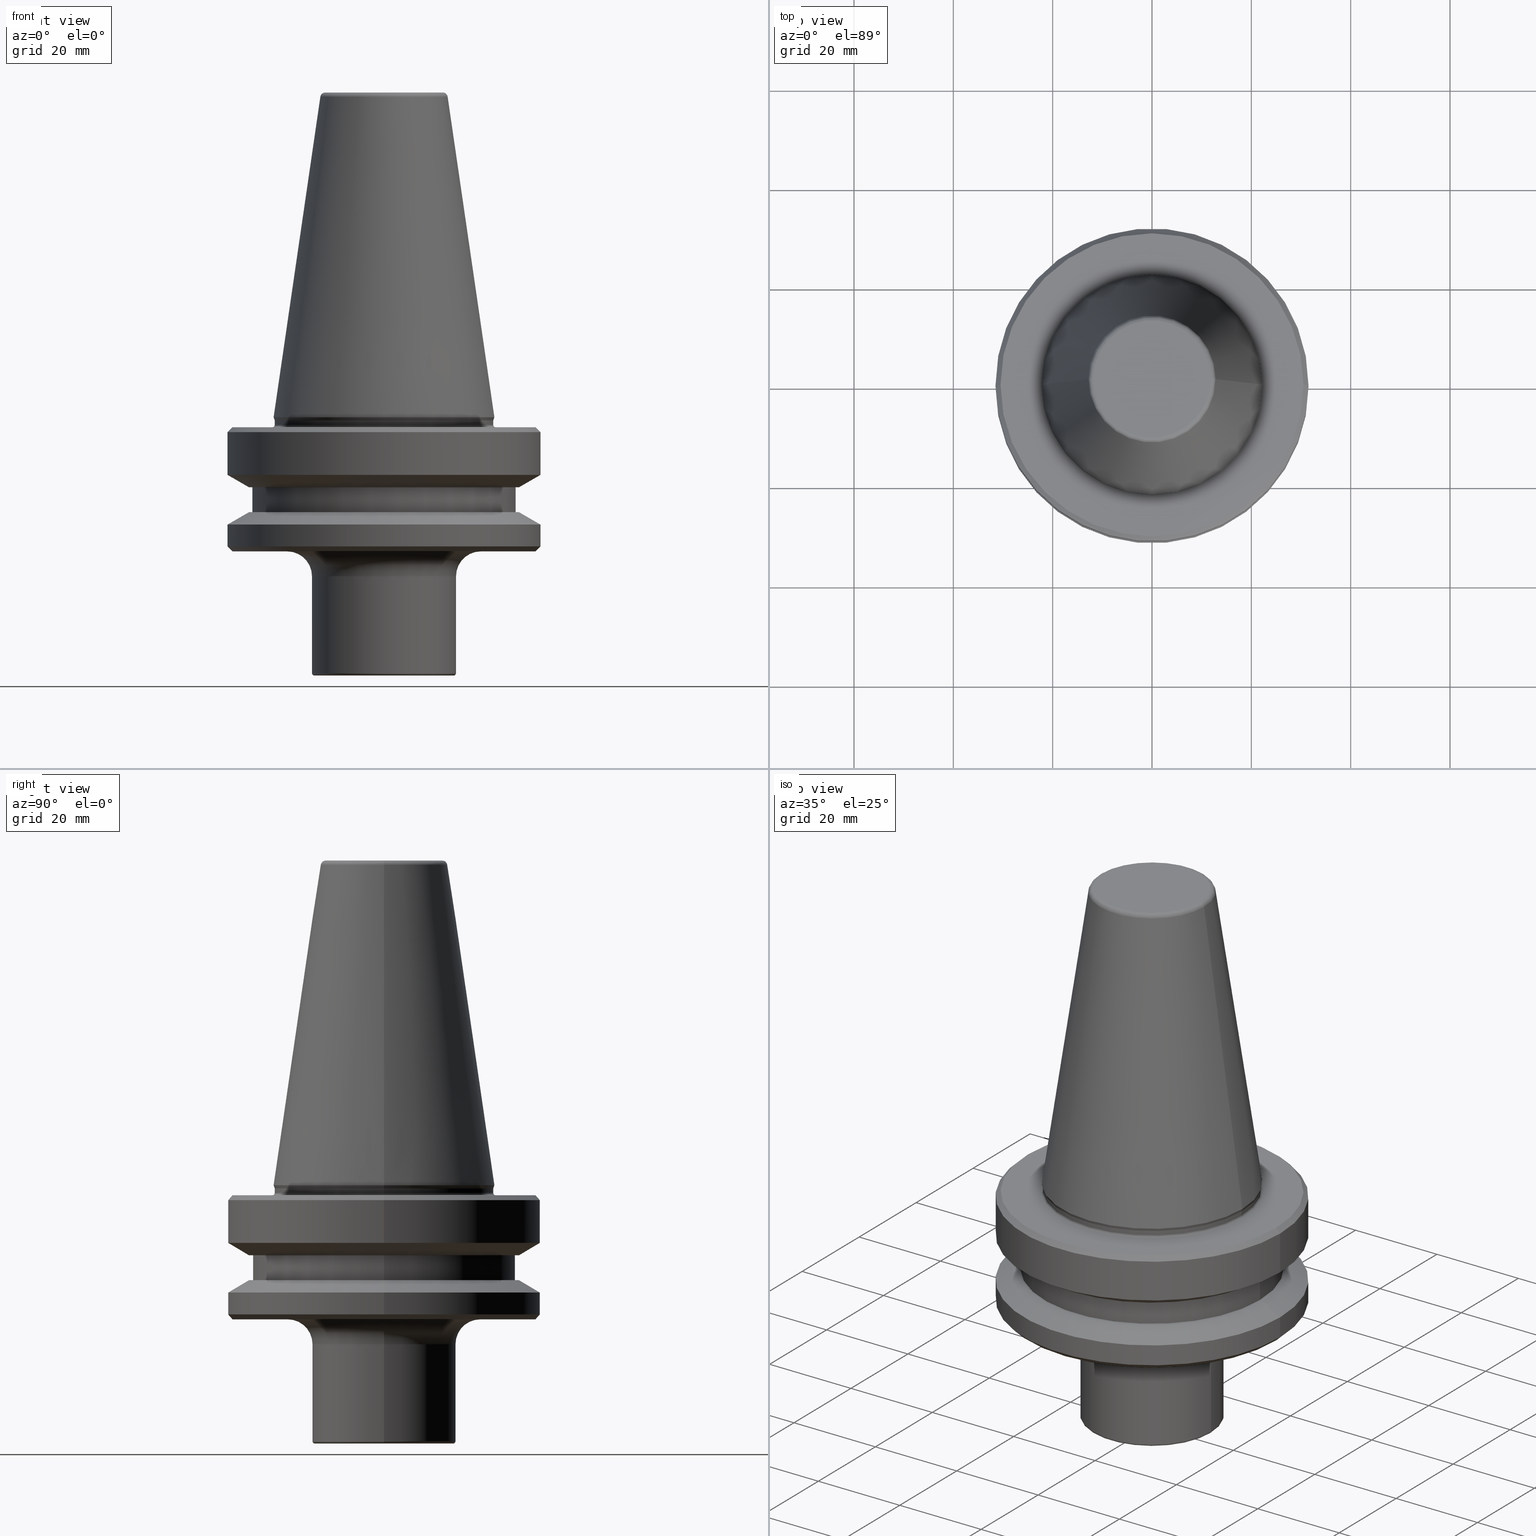
[diagram: canonical four-view strip — front | top / right | iso, engineering-drawing reading convention]
A machine part, canonical four-view strip (front | top / right | iso — engineering-drawing reading convention). The complete STEP part file that produces these views, byte-faithful:
ISO-10303-21;
HEADER;
FILE_DESCRIPTION (( 'STEP AP203' ),
    '1' );
FILE_NAME ('BT40 MCA16 025 AD+B-2.5G 25000 SL.STEP',
    '2019-05-24T10:24:04',
    ( '' ),
    ( '' ),
    'SwSTEP 2.0',
    'SolidWorks 2014',
    '' );
FILE_SCHEMA (( 'CONFIG_CONTROL_DESIGN' ));
ENDSEC;

DATA;
#1 = AXIS2_PLACEMENT_3D ( 'NONE', #532, #875, #857 ) ;
#2 = APPROVAL_STATUS ( 'not_yet_approved' ) ;
#3 = CIRCLE ( 'NONE', #718, 0.9999999999999696900 ) ;
#4 = DIRECTION ( 'NONE',  ( 1.000000000000000000, 0.0000000000000000000, 0.0000000000000000000 ) ) ;
#5 = DIRECTION ( 'NONE',  ( 0.0000000000000000000, 0.0000000000000000000, -1.000000000000000000 ) ) ;
#6 = FACE_BOUND ( 'NONE', #1049, .T. ) ;
#7 = ORIENTED_EDGE ( 'NONE', *, *, #208, .F. ) ;
#8 = DIRECTION ( 'NONE',  ( -0.0000000000000000000, -0.0000000000000000000, 1.000000000000000000 ) ) ;
#9 = DIRECTION ( 'NONE',  ( -0.0000000000000000000, -0.0000000000000000000, 1.000000000000000000 ) ) ;
#10 = DIRECTION ( 'NONE',  ( 1.000000000000000000, 0.0000000000000000000, 0.0000000000000000000 ) ) ;
#11 = ORIENTED_EDGE ( 'NONE', *, *, #258, .F. ) ;
#12 = DIRECTION ( 'NONE',  ( 1.000000000000000000, 0.0000000000000000000, 0.0000000000000000000 ) ) ;
#13 = AXIS2_PLACEMENT_3D ( 'NONE', #323, #983, #63 ) ;
#14 = CARTESIAN_POINT ( 'NONE',  ( 0.0000000000000000000, 0.0000000000000000000, -79.50000000000012800 ) ) ;
#15 = AXIS2_PLACEMENT_3D ( 'NONE', #514, #781, #192 ) ;
#16 = DIRECTION ( 'NONE',  ( -0.0000000000000000000, -0.0000000000000000000, 1.000000000000000000 ) ) ;
#17 = VECTOR ( 'NONE', #668, 1000.000000000000000 ) ;
#18 = CARTESIAN_POINT ( 'NONE',  ( 22.00000000000002100, 0.0000000000000000000, 6.357346922996331500 ) ) ;
#19 = ORIENTED_EDGE ( 'NONE', *, *, #107, .T. ) ;
#20 = ORIENTED_EDGE ( 'NONE', *, *, #543, .T. ) ;
#21 = VERTEX_POINT ( 'NONE', #105 ) ;
#22 = ORIENTED_EDGE ( 'NONE', *, *, #190, .F. ) ;
#23 = ADVANCED_FACE ( 'NONE', ( #399 ), #158, .F. ) ;
#24 = PERSON_AND_ORGANIZATION_ROLE ( 'classification_officer' ) ;
#25 = DIRECTION ( 'NONE',  ( -0.0000000000000000000, -0.0000000000000000000, 1.000000000000000000 ) ) ;
#26 = ORIENTED_EDGE ( 'NONE', *, *, #486, .T. ) ;
#27 = APPROVAL_DATE_TIME ( #249, #327 ) ;
#28 = LINE ( 'NONE', #749, #838 ) ;
#29 = DIRECTION ( 'NONE',  ( 1.000000000000000000, 0.0000000000000000000, 0.0000000000000000000 ) ) ;
#30 = CC_DESIGN_SECURITY_CLASSIFICATION ( #806, ( #537 ) ) ;
#31 = VERTEX_POINT ( 'NONE', #991 ) ;
#32 = VECTOR ( 'NONE', #213, 1000.000000000000000 ) ;
#33 = CARTESIAN_POINT ( 'NONE',  ( 31.50000000000008500, 0.0000000000000000000, -68.40000000000046000 ) ) ;
#34 = DIRECTION ( 'NONE',  ( 1.000000000000000000, 0.0000000000000000000, 0.0000000000000000000 ) ) ;
#35 = AXIS2_PLACEMENT_3D ( 'NONE', #953, #384, #961 ) ;
#36 = CARTESIAN_POINT ( 'NONE',  ( -22.40000000000019800, 2.743208830090095500E-015, -66.08871321165987900 ) ) ;
#37 = PERSON_AND_ORGANIZATION ( #588, #110 ) ;
#38 = DIRECTION ( 'NONE',  ( 1.000000000000000000, 0.0000000000000000000, 0.0000000000000000000 ) ) ;
#39 = AXIS2_PLACEMENT_3D ( 'NONE', #402, #480, #729 ) ;
#40 = FACE_BOUND ( 'NONE', #982, .T. ) ;
#41 = FACE_OUTER_BOUND ( 'NONE', #854, .T. ) ;
#42 = EDGE_LOOP ( 'NONE', ( #81, #800, #845, #375 ) ) ;
#43 = DIRECTION ( 'NONE',  ( -0.0000000000000000000, -0.0000000000000000000, 1.000000000000000000 ) ) ;
#44 = ORIENTED_EDGE ( 'NONE', *, *, #933, .T. ) ;
#45 = CARTESIAN_POINT ( 'NONE',  ( 0.0000000000000000000, 0.0000000000000000000, -67.40000000000034700 ) ) ;
#46 = ORIENTED_EDGE ( 'NONE', *, *, #614, .T. ) ;
#47 = ORIENTED_EDGE ( 'NONE', *, *, #789, .T. ) ;
#48 = CARTESIAN_POINT ( 'NONE',  ( 0.0000000000000000000, 0.0000000000000000000, -1.000000000000334000 ) ) ;
#49 = DIRECTION ( 'NONE',  ( 0.0000000000000000000, -1.000000000000000000, 0.0000000000000000000 ) ) ;
#50 = ORIENTED_EDGE ( 'NONE', *, *, #803, .F. ) ;
#51 = FACE_OUTER_BOUND ( 'NONE', #478, .T. ) ;
#52 = CARTESIAN_POINT ( 'NONE',  ( 0.0000000000000000000, 0.0000000000000000000, 6.357346922996331500 ) ) ;
#53 = DIRECTION ( 'NONE',  ( 0.7071067811865474600, 8.659560562354931600E-017, -0.7071067811865475700 ) ) ;
#54 = EDGE_CURVE ( 'NONE', #815, #167, #923, .T. ) ;
#55 = ADVANCED_FACE ( 'NONE', ( #666 ), #538, .F. ) ;
#56 = EDGE_LOOP ( 'NONE', ( #177, #802, #515, #225 ) ) ;
#57 = AXIS2_PLACEMENT_3D ( 'NONE', #1019, #689, #1018 ) ;
#58 = CARTESIAN_POINT ( 'NONE',  ( 31.50000000000008500, 0.0000000000000000000, -91.40000000000037500 ) ) ;
#59 = ORIENTED_EDGE ( 'NONE', *, *, #236, .T. ) ;
#60 = ORIENTED_EDGE ( 'NONE', *, *, #612, .T. ) ;
#61 = ADVANCED_FACE ( 'NONE', ( #748 ), #631, .T. ) ;
#62 = VECTOR ( 'NONE', #141, 1000.000000000000000 ) ;
#63 = DIRECTION ( 'NONE',  ( 1.000000000000000000, 0.0000000000000000000, 0.0000000000000000000 ) ) ;
#64 = EDGE_CURVE ( 'NONE', #815, #31, #725, .T. ) ;
#65 = CIRCLE ( 'NONE', #1054, 27.16962701892322600 ) ;
#66 = CIRCLE ( 'NONE', #149, 4.999999999999997300 ) ;
#67 = ADVANCED_FACE ( 'NONE', ( #307 ), #477, .T. ) ;
#68 = EDGE_CURVE ( 'NONE', #167, #430, #498, .T. ) ;
#69 = DIRECTION ( 'NONE',  ( -0.0000000000000000000, -0.0000000000000000000, 1.000000000000000000 ) ) ;
#70 = VECTOR ( 'NONE', #347, 1000.000000000000000 ) ;
#71 = VERTEX_POINT ( 'NONE', #798 ) ;
#72 = CYLINDRICAL_SURFACE ( 'NONE', #428, 31.50000000000008500 ) ;
#73 = AXIS2_PLACEMENT_3D ( 'NONE', #237, #670, #584 ) ;
#74 = ORIENTED_EDGE ( 'NONE', *, *, #844, .T. ) ;
#75 = ORIENTED_EDGE ( 'NONE', *, *, #786, .T. ) ;
#76 = CARTESIAN_POINT ( 'NONE',  ( 0.0000000000000000000, 0.0000000000000000000, 6.357346922996331500 ) ) ;
#77 = AXIS2_PLACEMENT_3D ( 'NONE', #169, #650, #79 ) ;
#78 = CIRCLE ( 'NONE', #77, 0.4999999999999449300 ) ;
#79 = DIRECTION ( 'NONE',  ( 0.0000000000000000000, 0.0000000000000000000, -1.000000000000000000 ) ) ;
#80 = PRODUCT_RELATED_PRODUCT_CATEGORY ( 'detail', '', ( #510 ) ) ;
#81 = ORIENTED_EDGE ( 'NONE', *, *, #933, .F. ) ;
#82 = DIRECTION ( 'NONE',  ( -0.0000000000000000000, -0.0000000000000000000, 1.000000000000000000 ) ) ;
#83 = ORIENTED_EDGE ( 'NONE', *, *, #88, .F. ) ;
#84 = CARTESIAN_POINT ( 'NONE',  ( 0.0000000000000000000, 0.0000000000000000000, -65.40000000000057400 ) ) ;
#85 = ORIENTED_EDGE ( 'NONE', *, *, #190, .T. ) ;
#86 = ADVANCED_FACE ( 'NONE', ( #705 ), #72, .T. ) ;
#87 = CARTESIAN_POINT ( 'NONE',  ( 0.0000000000000000000, 0.0000000000000000000, -116.9000000000083300 ) ) ;
#88 = EDGE_CURVE ( 'NONE', #404, #1021, #267, .T. ) ;
#89 = FACE_OUTER_BOUND ( 'NONE', #370, .T. ) ;
#90 = AXIS2_PLACEMENT_3D ( 'NONE', #1016, #82, #540 ) ;
#91 = TOROIDAL_SURFACE ( 'NONE', #930, 22.40000000000019800, 0.4000000000001546800 ) ;
#92 = AXIS2_PLACEMENT_3D ( 'NONE', #640, #379, #775 ) ;
#93 = ADVANCED_FACE ( 'NONE', ( #41 ), #137, .T. ) ;
#94 = DIRECTION ( 'NONE',  ( 0.0000000000000000000, -0.0000000000000000000, 1.000000000000000000 ) ) ;
#95 = CIRCLE ( 'NONE', #241, 31.50000000000008500 ) ;
#96 = EDGE_CURVE ( 'NONE', #873, #1011, #331, .T. ) ;
#97 = ORIENTED_EDGE ( 'NONE', *, *, #161, .T. ) ;
#98 = CARTESIAN_POINT ( 'NONE',  ( 0.0000000000000000000, 0.0000000000000000000, -0.8556918111122247000 ) ) ;
#99 = DIRECTION ( 'NONE',  ( 1.000000000000000000, 0.0000000000000000000, 0.0000000000000000000 ) ) ;
#100 = ORIENTED_EDGE ( 'NONE', *, *, #646, .T. ) ;
#101 = EDGE_CURVE ( 'NONE', #881, #954, #111, .T. ) ;
#102 = DIRECTION ( 'NONE',  ( -0.0000000000000000000, -0.0000000000000000000, 1.000000000000000000 ) ) ;
#103 = ORIENTED_EDGE ( 'NONE', *, *, #825, .T. ) ;
#104 = PLANE ( 'NONE',  #771 ) ;
#105 = CARTESIAN_POINT ( 'NONE',  ( -27.16962701892322600, 3.592478546794674900E-015, -79.50000000000012800 ) ) ;
#106 = DIRECTION ( 'NONE',  ( 0.0000000000000000000, 0.0000000000000000000, -1.000000000000000000 ) ) ;
#107 = EDGE_CURVE ( 'NONE', #692, #431, #539, .T. ) ;
#108 = DIRECTION ( 'NONE',  ( 1.000000000000000000, 0.0000000000000000000, 0.0000000000000000000 ) ) ;
#109 = CARTESIAN_POINT ( 'NONE',  ( -22.00000000000002100, 2.694222958124179600E-015, -66.08871321165987900 ) ) ;
#110 = ORGANIZATION ( 'UNSPECIFIED', 'UNSPECIFIED', '' ) ;
#111 = CIRCLE ( 'NONE', #1002, 14.00000000000030000 ) ;
#112 = EDGE_CURVE ( 'NONE', #1023, #804, #507, .T. ) ;
#113 = CARTESIAN_POINT ( 'NONE',  ( 30.49999999999997200, 3.796405077356798300E-015, -67.40000000000034700 ) ) ;
#114 = DIRECTION ( 'NONE',  ( -0.0000000000000000000, -0.0000000000000000000, 1.000000000000000000 ) ) ;
#115 = AXIS2_PLACEMENT_3D ( 'NONE', #852, #970, #38 ) ;
#116 = DIRECTION ( 'NONE',  ( -0.0000000000000000000, -0.0000000000000000000, 1.000000000000000000 ) ) ;
#117 = ORIENTED_EDGE ( 'NONE', *, *, #501, .T. ) ;
#118 = ORIENTED_EDGE ( 'NONE', *, *, #878, .F. ) ;
#119 = DIRECTION ( 'NONE',  ( 0.0000000000000000000, -1.000000000000000000, 0.0000000000000000000 ) ) ;
#120 = CARTESIAN_POINT ( 'NONE',  ( 0.0000000000000000000, 0.0000000000000000000, -87.00014200631733300 ) ) ;
#121 = FACE_OUTER_BOUND ( 'NONE', #207, .T. ) ;
#122 = CALENDAR_DATE ( 2019, 24, 5 ) ;
#123 = CONICAL_SURFACE ( 'NONE', #656, 31.50000000000008500, 1.047197551196597400 ) ;
#124 = FACE_OUTER_BOUND ( 'NONE', #224, .T. ) ;
#125 = EDGE_CURVE ( 'NONE', #889, #320, #948, .T. ) ;
#126 = ORIENTED_EDGE ( 'NONE', *, *, #501, .F. ) ;
#127 = ORIENTED_EDGE ( 'NONE', *, *, #474, .T. ) ;
#128 = EDGE_LOOP ( 'NONE', ( #369, #937, #638, #408 ) ) ;
#129 = AXIS2_PLACEMENT_3D ( 'NONE', #695, #432, #910 ) ;
#130 = CARTESIAN_POINT ( 'NONE',  ( 31.50000000000008500, 0.0000000000000000000, 6.357346922996331500 ) ) ;
#131 = CARTESIAN_POINT ( 'NONE',  ( 0.0000000000000000000, 0.0000000000000000000, -84.50000000000068200 ) ) ;
#132 = EDGE_CURVE ( 'NONE', #742, #1021, #700, .T. ) ;
#133 = DIRECTION ( 'NONE',  ( 0.0000000000000000000, 0.0000000000000000000, -1.000000000000000000 ) ) ;
#134 = AXIS2_PLACEMENT_3D ( 'NONE', #494, #448, #233 ) ;
#135 = DIRECTION ( 'NONE',  ( -0.0000000000000000000, -0.0000000000000000000, 1.000000000000000000 ) ) ;
#136 = ORIENTED_EDGE ( 'NONE', *, *, #878, .T. ) ;
#137 = CYLINDRICAL_SURFACE ( 'NONE', #39, 31.50000000000008500 ) ;
#138 = DIRECTION ( 'NONE',  ( -0.0000000000000000000, -0.0000000000000000000, 1.000000000000000000 ) ) ;
#139 = APPROVAL_STATUS ( 'not_yet_approved' ) ;
#140 = EDGE_LOOP ( 'NONE', ( #266, #20, #59, #215 ) ) ;
#141 = DIRECTION ( 'NONE',  ( -0.0000000000000000000, -0.0000000000000000000, 1.000000000000000000 ) ) ;
#142 = DIRECTION ( 'NONE',  ( -1.000000000000000000, 0.0000000000000000000, 0.0000000000000000000 ) ) ;
#143 = LINE ( 'NONE', #925, #801 ) ;
#144 = CIRCLE ( 'NONE', #509, 14.50000000000000200 ) ;
#145 = DATE_AND_TIME ( #362, #572 ) ;
#146 = VECTOR ( 'NONE', #318, 1000.000000000000000 ) ;
#147 = CYLINDRICAL_SURFACE ( 'NONE', #758, 22.00000000000002100 ) ;
#148 = DIRECTION ( 'NONE',  ( -0.0000000000000000000, -0.0000000000000000000, 1.000000000000000000 ) ) ;
#149 = AXIS2_PLACEMENT_3D ( 'NONE', #829, #997, #659 ) ;
#150 = CARTESIAN_POINT ( 'NONE',  ( -22.00000000000002100, 2.694222958124179600E-015, 6.357346922996331500 ) ) ;
#151 = TOROIDAL_SURFACE ( 'NONE', #1017, 14.00000000000030000, 0.4999999999996985700 ) ;
#152 = ORIENTED_EDGE ( 'NONE', *, *, #901, .T. ) ;
#153 = DIRECTION ( 'NONE',  ( -0.0000000000000000000, -0.0000000000000000000, 1.000000000000000000 ) ) ;
#154 = EDGE_CURVE ( 'NONE', #1011, #404, #519, .T. ) ;
#155 = ADVANCED_FACE ( 'NONE', ( #597 ), #902, .T. ) ;
#156 = AXIS2_PLACEMENT_3D ( 'NONE', #563, #1048, #317 ) ;
#157 = ORIENTED_EDGE ( 'NONE', *, *, #865, .T. ) ;
#158 = TOROIDAL_SURFACE ( 'NONE', #809, 22.49999999999996400, 0.4999999999999449300 ) ;
#159 = DIRECTION ( 'NONE',  ( 1.000000000000000000, 0.0000000000000000000, 0.0000000000000000000 ) ) ;
#160 = EDGE_CURVE ( 'NONE', #541, #349, #869, .T. ) ;
#161 = EDGE_CURVE ( 'NONE', #1008, #21, #632, .T. ) ;
#162 = VERTEX_POINT ( 'NONE', #780 ) ;
#163 = EDGE_CURVE ( 'NONE', #828, #883, #837, .T. ) ;
#164 = AXIS2_PLACEMENT_3D ( 'NONE', #382, #222, #108 ) ;
#165 = PLANE ( 'NONE',  #952 ) ;
#166 = EDGE_CURVE ( 'NONE', #1011, #873, #884, .T. ) ;
#167 = VERTEX_POINT ( 'NONE', #966 ) ;
#168 = VERTEX_POINT ( 'NONE', #469 ) ;
#169 = CARTESIAN_POINT ( 'NONE',  ( 22.49999999999996400, 0.0000000000000000000, -66.90000000000040400 ) ) ;
#170 = DIRECTION ( 'NONE',  ( -0.0000000000000000000, -0.0000000000000000000, 1.000000000000000000 ) ) ;
#171 = AXIS2_PLACEMENT_3D ( 'NONE', #762, #43, #210 ) ;
#172 = CYLINDRICAL_SURFACE ( 'NONE', #313, 26.50000000000019200 ) ;
#173 = PERSON_AND_ORGANIZATION ( #588, #110 ) ;
#174 = FACE_OUTER_BOUND ( 'NONE', #270, .T. ) ;
#175 = CONICAL_SURFACE ( 'NONE', #639, 12.81220206925736900, 0.1448138077623198300 ) ;
#176 = EDGE_CURVE ( 'NONE', #71, #828, #548, .T. ) ;
#177 = ORIENTED_EDGE ( 'NONE', *, *, #627, .F. ) ;
#178 = EDGE_CURVE ( 'NONE', #657, #168, #652, .T. ) ;
#179 = PLANE ( 'NONE',  #452 ) ;
#180 = EDGE_LOOP ( 'NONE', ( #126, #235, #1042, #777 ) ) ;
#181 = ADVANCED_FACE ( 'NONE', ( #971 ), #487, .T. ) ;
#182 = DIRECTION ( 'NONE',  ( -0.0000000000000000000, -0.0000000000000000000, 1.000000000000000000 ) ) ;
#183 = CARTESIAN_POINT ( 'NONE',  ( 0.0000000000000000000, 0.0000000000000000000, -91.40000000000037500 ) ) ;
#184 = AXIS2_PLACEMENT_3D ( 'NONE', #186, #956, #230 ) ;
#185 = DIRECTION ( 'NONE',  ( 1.000000000000000000, 0.0000000000000000000, 0.0000000000000000000 ) ) ;
#186 = CARTESIAN_POINT ( 'NONE',  ( 0.0000000000000000000, 0.0000000000000000000, -97.40000000000803500 ) ) ;
#187 = CARTESIAN_POINT ( 'NONE',  ( -22.02412295168553100, 2.697177167680943700E-015, -65.95190515433003500 ) ) ;
#188 = VECTOR ( 'NONE', #457, 1000.000000000000100 ) ;
#189 = APPROVAL_STATUS ( 'not_yet_approved' ) ;
#190 = EDGE_CURVE ( 'NONE', #883, #324, #303, .T. ) ;
#191 = ORIENTED_EDGE ( 'NONE', *, *, #803, .T. ) ;
#192 = DIRECTION ( 'NONE',  ( 1.000000000000000000, 0.0000000000000000000, 0.0000000000000000000 ) ) ;
#193 = ORIENTED_EDGE ( 'NONE', *, *, #1030, .F. ) ;
#194 = DIRECTION ( 'NONE',  ( 1.000000000000000000, 0.0000000000000000000, 0.0000000000000000000 ) ) ;
#195 = DIRECTION ( 'NONE',  ( 0.0000000000000000000, 0.0000000000000000000, -1.000000000000000000 ) ) ;
#196 = ORIENTED_EDGE ( 'NONE', *, *, #112, .T. ) ;
#197 = LOCAL_TIME ( 15, 54, 4.000000000000000000, #411 ) ;
#198 = DIRECTION ( 'NONE',  ( -0.0000000000000000000, -0.0000000000000000000, 1.000000000000000000 ) ) ;
#199 = AXIS2_PLACEMENT_3D ( 'NONE', #1027, #536, #678 ) ;
#200 = CONICAL_SURFACE ( 'NONE', #334, 31.50000000000008500, 1.047197551196587000 ) ;
#201 = CARTESIAN_POINT ( 'NONE',  ( 22.40000000000019800, 0.0000000000000000000, -66.08871321165987900 ) ) ;
#202 = EDGE_CURVE ( 'NONE', #31, #430, #78, .T. ) ;
#203 = ORIENTED_EDGE ( 'NONE', *, *, #833, .T. ) ;
#204 = CARTESIAN_POINT ( 'NONE',  ( 0.0000000000000000000, 0.0000000000000000000, -92.40000000000803500 ) ) ;
#205 = TOROIDAL_SURFACE ( 'NONE', #73, 19.49999999999999600, 4.999999999999999100 ) ;
#206 = PERSON_AND_ORGANIZATION_ROLE ( 'creator' ) ;
#207 = EDGE_LOOP ( 'NONE', ( #516, #896, #693, #605 ) ) ;
#208 = EDGE_CURVE ( 'NONE', #974, #168, #3, .T. ) ;
#209 = AXIS2_PLACEMENT_3D ( 'NONE', #839, #791, #551 ) ;
#210 = DIRECTION ( 'NONE',  ( 1.000000000000000000, 0.0000000000000000000, 0.0000000000000000000 ) ) ;
#211 = DIRECTION ( 'NONE',  ( 0.0000000000000000000, 0.0000000000000000000, -1.000000000000000000 ) ) ;
#212 = EDGE_CURVE ( 'NONE', #804, #706, #143, .T. ) ;
#213 = DIRECTION ( 'NONE',  ( -0.0000000000000000000, -0.0000000000000000000, 1.000000000000000000 ) ) ;
#214 = LINE ( 'NONE', #993, #243 ) ;
#215 = ORIENTED_EDGE ( 'NONE', *, *, #612, .F. ) ;
#216 = EDGE_LOOP ( 'NONE', ( #97, #1037, #856, #500 ) ) ;
#217 = EDGE_LOOP ( 'NONE', ( #554, #943, #872, #7 ) ) ;
#218 = EDGE_LOOP ( 'NONE', ( #618, #19, #1004, #628 ) ) ;
#219 = CC_DESIGN_PERSON_AND_ORGANIZATION_ASSIGNMENT ( #263, #822, ( #510 ) ) ;
#220 = DIRECTION ( 'NONE',  ( -0.0000000000000000000, -0.0000000000000000000, 1.000000000000000000 ) ) ;
#221 = ORIENTED_EDGE ( 'NONE', *, *, #486, .F. ) ;
#222 = DIRECTION ( 'NONE',  ( 0.0000000000000000000, 0.0000000000000000000, 1.000000000000000000 ) ) ;
#223 = CARTESIAN_POINT ( 'NONE',  ( -26.50000000000019200, 3.245314017740509400E-015, -84.50000000000068200 ) ) ;
#224 = EDGE_LOOP ( 'NONE', ( #392, #348, #476, #945 ) ) ;
#225 = ORIENTED_EDGE ( 'NONE', *, *, #96, .F. ) ;
#226 = CALENDAR_DATE ( 2019, 24, 5 ) ;
#227 = VECTOR ( 'NONE', #511, 1000.000000000000000 ) ;
#228 = AXIS2_PLACEMENT_3D ( 'NONE', #491, #425, #279 ) ;
#229 = ADVANCED_FACE ( 'NONE', ( #681 ), #172, .T. ) ;
#230 = DIRECTION ( 'NONE',  ( 1.000000000000000000, 0.0000000000000000000, 0.0000000000000000000 ) ) ;
#231 = ORIENTED_EDGE ( 'NONE', *, *, #212, .F. ) ;
#232 = VECTOR ( 'NONE', #170, 1000.000000000000000 ) ;
#233 = DIRECTION ( 'NONE',  ( 1.000000000000000000, 0.0000000000000000000, 0.0000000000000000000 ) ) ;
#234 = DIRECTION ( 'NONE',  ( 0.0000000000000000000, 0.0000000000000000000, -1.000000000000000000 ) ) ;
#235 = ORIENTED_EDGE ( 'NONE', *, *, #936, .T. ) ;
#236 = EDGE_CURVE ( 'NONE', #419, #817, #593, .T. ) ;
#237 = CARTESIAN_POINT ( 'NONE',  ( 0.0000000000000000000, 0.0000000000000000000, -97.40000000000803500 ) ) ;
#238 = EDGE_CURVE ( 'NONE', #815, #419, #782, .T. ) ;
#239 = DIRECTION ( 'NONE',  ( -0.0000000000000000000, -0.0000000000000000000, 1.000000000000000000 ) ) ;
#240 = EDGE_CURVE ( 'NONE', #252, #974, #385, .T. ) ;
#241 = AXIS2_PLACEMENT_3D ( 'NONE', #352, #484, #259 ) ;
#242 = CARTESIAN_POINT ( 'NONE',  ( 0.0000000000000000000, 0.0000000000000000000, -68.40000000000046000 ) ) ;
#243 = VECTOR ( 'NONE', #585, 1000.000000000000000 ) ;
#244 = ORIENTED_EDGE ( 'NONE', *, *, #418, .F. ) ;
#245 = CARTESIAN_POINT ( 'NONE',  ( 0.0000000000000000000, 0.0000000000000000000, -67.40000000000034700 ) ) ;
#246 = CARTESIAN_POINT ( 'NONE',  ( 0.0000000000000000000, 0.0000000000000000000, -68.40000000000046000 ) ) ;
#247 = ORIENTED_EDGE ( 'NONE', *, *, #258, .T. ) ;
#248 = CARTESIAN_POINT ( 'NONE',  ( 31.50000000000008500, 0.0000000000000000000, 6.357346922996331500 ) ) ;
#249 = DATE_AND_TIME ( #460, #674 ) ;
#250 = CIRCLE ( 'NONE', #283, 30.49999999999241900 ) ;
#251 = DIRECTION ( 'NONE',  ( -0.0000000000000000000, -0.0000000000000000000, 1.000000000000000000 ) ) ;
#252 = VERTEX_POINT ( 'NONE', #333 ) ;
#253 = FACE_OUTER_BOUND ( 'NONE', #766, .T. ) ;
#254 = ORIENTED_EDGE ( 'NONE', *, *, #447, .T. ) ;
#255 = ORIENTED_EDGE ( 'NONE', *, *, #154, .T. ) ;
#256 = DIRECTION ( 'NONE',  ( 0.3420201433262311000, 0.0000000000000000000, 0.9396926207857037000 ) ) ;
#257 = ORIENTED_EDGE ( 'NONE', *, *, #988, .T. ) ;
#258 = EDGE_CURVE ( 'NONE', #768, #298, #1003, .T. ) ;
#259 = DIRECTION ( 'NONE',  ( 1.000000000000000000, 0.0000000000000000000, 0.0000000000000000000 ) ) ;
#260 = AXIS2_PLACEMENT_3D ( 'NONE', #542, #463, #142 ) ;
#261 = APPROVAL_ROLE ( '' ) ;
#262 = CARTESIAN_POINT ( 'NONE',  ( 22.00000000000002100, 0.0000000000000000000, -66.08871321165987900 ) ) ;
#263 = PERSON_AND_ORGANIZATION ( #588, #110 ) ;
#264 = FACE_OUTER_BOUND ( 'NONE', #479, .T. ) ;
#265 = DIRECTION ( 'NONE',  ( 0.0000000000000000000, 0.0000000000000000000, -1.000000000000000000 ) ) ;
#266 = ORIENTED_EDGE ( 'NONE', *, *, #112, .F. ) ;
#267 = CIRCLE ( 'NONE', #713, 31.50000000000008500 ) ;
#268 = ORIENTED_EDGE ( 'NONE', *, *, #101, .F. ) ;
#269 = AXIS2_PLACEMENT_3D ( 'NONE', #562, #682, #34 ) ;
#270 = EDGE_LOOP ( 'NONE', ( #445, #454, #257, #897 ) ) ;
#271 = EDGE_LOOP ( 'NONE', ( #103, #717, #620, #947 ) ) ;
#272 = CARTESIAN_POINT ( 'NONE',  ( 14.50000000000000000, 0.0000000000000000000, -116.9000000000083300 ) ) ;
#273 = DIRECTION ( 'NONE',  ( 1.000000000000000000, 0.0000000000000000000, 0.0000000000000000000 ) ) ;
#274 = EDGE_CURVE ( 'NONE', #455, #564, #144, .T. ) ;
#275 = DIRECTION ( 'NONE',  ( -1.000000000000000000, 0.0000000000000000000, -0.0000000000000000000 ) ) ;
#276 = PRODUCT_DEFINITION ( 'UNKNOWN', '', #537, #992 ) ;
#277 = ORIENTED_EDGE ( 'NONE', *, *, #543, .F. ) ;
#278 = VECTOR ( 'NONE', #449, 1000.000000000000000 ) ;
#279 = DIRECTION ( 'NONE',  ( 1.000000000000000000, 0.0000000000000000000, 0.0000000000000000000 ) ) ;
#280 = EDGE_CURVE ( 'NONE', #817, #419, #977, .T. ) ;
#281 = CARTESIAN_POINT ( 'NONE',  ( 0.0000000000000000000, 0.0000000000000000000, -66.08871321165987900 ) ) ;
#282 = EDGE_CURVE ( 'NONE', #541, #768, #756, .T. ) ;
#283 = AXIS2_PLACEMENT_3D ( 'NONE', #204, #831, #1006 ) ;
#284 = CARTESIAN_POINT ( 'NONE',  ( 0.0000000000000000000, 0.0000000000000000000, 6.357346922996331500 ) ) ;
#285 = ORIENTED_EDGE ( 'NONE', *, *, #366, .F. ) ;
#286 = CYLINDRICAL_SURFACE ( 'NONE', #57, 31.50000000000008500 ) ;
#287 = EDGE_CURVE ( 'NONE', #386, #162, #360, .T. ) ;
#288 = CARTESIAN_POINT ( 'NONE',  ( 19.49999999999999600, 0.0000000000000000000, -92.40000000000803500 ) ) ;
#289 = LINE ( 'NONE', #130, #32 ) ;
#290 = DIRECTION ( 'NONE',  ( -0.0000000000000000000, -0.0000000000000000000, 1.000000000000000000 ) ) ;
#291 = DIRECTION ( 'NONE',  ( -1.000000000000000000, 0.0000000000000000000, 0.0000000000000000000 ) ) ;
#292 = FACE_OUTER_BOUND ( 'NONE', #358, .T. ) ;
#293 = FACE_OUTER_BOUND ( 'NONE', #330, .T. ) ;
#294 = ORIENTED_EDGE ( 'NONE', *, *, #202, .T. ) ;
#295 = EDGE_LOOP ( 'NONE', ( #244, #322, #127, #285 ) ) ;
#296 = AXIS2_PLACEMENT_3D ( 'NONE', #342, #904, #495 ) ;
#297 = CARTESIAN_POINT ( 'NONE',  ( -14.50000000000000200, 1.775737858763662400E-015, 6.357346922996331500 ) ) ;
#298 = VERTEX_POINT ( 'NONE', #485 ) ;
#299 = ORIENTED_EDGE ( 'NONE', *, *, #684, .F. ) ;
#300 = CARTESIAN_POINT ( 'NONE',  ( 0.0000000000000000000, 0.0000000000000000000, -117.4000000000080200 ) ) ;
#301 = CARTESIAN_POINT ( 'NONE',  ( -31.50000000000008500, 3.857637417314172900E-015, 6.357346922996331500 ) ) ;
#302 = ORIENTED_EDGE ( 'NONE', *, *, #240, .T. ) ;
#303 = CIRCLE ( 'NONE', #199, 31.50000000000008500 ) ;
#304 = DIRECTION ( 'NONE',  ( -0.0000000000000000000, -0.0000000000000000000, 1.000000000000000000 ) ) ;
#305 = DIRECTION ( 'NONE',  ( 1.000000000000000000, 0.0000000000000000000, 0.0000000000000000000 ) ) ;
#306 = ORIENTED_EDGE ( 'NONE', *, *, #161, .F. ) ;
#307 = FACE_OUTER_BOUND ( 'NONE', #911, .T. ) ;
#308 = ORIENTED_EDGE ( 'NONE', *, *, #421, .T. ) ;
#309 = EDGE_LOOP ( 'NONE', ( #306, #578 ) ) ;
#310 = CARTESIAN_POINT ( 'NONE',  ( -14.50000000000000000, 1.775737858763662000E-015, -116.9000000000083300 ) ) ;
#311 = UNCERTAINTY_MEASURE_WITH_UNIT (LENGTH_MEASURE( 1.000000000000000100E-005 ), #951, 'distance_accuracy_value', 'NONE');
#312 = FACE_OUTER_BOUND ( 'NONE', #42, .T. ) ;
#313 = AXIS2_PLACEMENT_3D ( 'NONE', #52, #843, #920 ) ;
#314 = VECTOR ( 'NONE', #53, 1000.000000000000000 ) ;
#315 = EDGE_CURVE ( 'NONE', #298, #768, #546, .T. ) ;
#316 = AXIS2_PLACEMENT_3D ( 'NONE', #767, #376, #955 ) ;
#317 = DIRECTION ( 'NONE',  ( 1.000000000000000000, 0.0000000000000000000, 0.0000000000000000000 ) ) ;
#318 = DIRECTION ( 'NONE',  ( 0.7071067811865487900, 0.0000000000000000000, 0.7071067811865463500 ) ) ;
#319 = CIRCLE ( 'NONE', #296, 26.50000000000019200 ) ;
#320 = VERTEX_POINT ( 'NONE', #496 ) ;
#321 = ORIENTED_EDGE ( 'NONE', *, *, #401, .T. ) ;
#322 = ORIENTED_EDGE ( 'NONE', *, *, #1030, .T. ) ;
#323 = CARTESIAN_POINT ( 'NONE',  ( 0.0000000000000000000, 0.0000000000000000000, -66.08871321165987900 ) ) ;
#324 = VERTEX_POINT ( 'NONE', #645 ) ;
#325 = EDGE_LOOP ( 'NONE', ( #191, #47 ) ) ;
#326 = DIRECTION ( 'NONE',  ( -0.0000000000000000000, -0.0000000000000000000, 1.000000000000000000 ) ) ;
#327 = APPROVAL ( #189, 'UNSPECIFIED' ) ;
#328 = SHAPE_DEFINITION_REPRESENTATION ( #553, #503 ) ;
#329 = DIRECTION ( 'NONE',  ( 1.000000000000000000, 0.0000000000000000000, 0.0000000000000000000 ) ) ;
#330 = EDGE_LOOP ( 'NONE', ( #405, #576, #351, #859 ) ) ;
#331 = CIRCLE ( 'NONE', #92, 31.50000000000008500 ) ;
#332 = DIRECTION ( 'NONE',  ( -0.0000000000000000000, -0.0000000000000000000, 1.000000000000000000 ) ) ;
#333 = CARTESIAN_POINT ( 'NONE',  ( -12.81220206925736900, 0.0000000000000000000, -0.8556918111122247000 ) ) ;
#334 = AXIS2_PLACEMENT_3D ( 'NONE', #120, #234, #683 ) ;
#335 = DIRECTION ( 'NONE',  ( -0.0000000000000000000, -0.0000000000000000000, 1.000000000000000000 ) ) ;
#336 = LINE ( 'NONE', #765, #709 ) ;
#337 = CARTESIAN_POINT ( 'NONE',  ( 0.0000000000000000000, 0.0000000000000000000, -84.50000000000068200 ) ) ;
#338 = PLANE ( 'NONE',  #577 ) ;
#339 = LOCAL_TIME ( 15, 54, 4.000000000000000000, #547 ) ;
#340 = CIRCLE ( 'NONE', #874, 22.22499999999993700 ) ;
#341 = ADVANCED_FACE ( 'NONE', ( #121 ), #931, .T. ) ;
#342 = CARTESIAN_POINT ( 'NONE',  ( 0.0000000000000000000, 0.0000000000000000000, -79.50000000000012800 ) ) ;
#343 = CIRCLE ( 'NONE', #129, 0.4999999999996985700 ) ;
#344 = CARTESIAN_POINT ( 'NONE',  ( 0.0000000000000000000, 0.0000000000000000000, -4.440892098500626200E-013 ) ) ;
#345 = CARTESIAN_POINT ( 'NONE',  ( 14.50000000000000200, 0.0000000000000000000, 6.357346922996331500 ) ) ;
#346 = DIRECTION ( 'NONE',  ( 1.000000000000000000, 0.0000000000000000000, 0.0000000000000000000 ) ) ;
#347 = DIRECTION ( 'NONE',  ( -0.0000000000000000000, -0.0000000000000000000, 1.000000000000000000 ) ) ;
#348 = ORIENTED_EDGE ( 'NONE', *, *, #712, .T. ) ;
#349 = VERTEX_POINT ( 'NONE', #571 ) ;
#350 = DIRECTION ( 'NONE',  ( 1.000000000000000000, 0.0000000000000000000, 0.0000000000000000000 ) ) ;
#351 = ORIENTED_EDGE ( 'NONE', *, *, #68, .T. ) ;
#352 = CARTESIAN_POINT ( 'NONE',  ( 0.0000000000000000000, 0.0000000000000000000, -87.00014200631733300 ) ) ;
#353 = CARTESIAN_POINT ( 'NONE',  ( -22.22499999999993700, 2.721777511104985000E-015, -65.40000000000057400 ) ) ;
#354 = ADVANCED_FACE ( 'NONE', ( #89 ), #165, .F. ) ;
#355 = DIRECTION ( 'NONE',  ( -0.0000000000000000000, -0.0000000000000000000, 1.000000000000000000 ) ) ;
#356 = EDGE_CURVE ( 'NONE', #692, #162, #521, .T. ) ;
#357 = CARTESIAN_POINT ( 'NONE',  ( 0.0000000000000000000, 0.0000000000000000000, -65.95190515433003500 ) ) ;
#358 = EDGE_LOOP ( 'NONE', ( #827, #50, #513, #467 ) ) ;
#359 = DIRECTION ( 'NONE',  ( 0.0000000000000000000, -1.000000000000000000, 0.0000000000000000000 ) ) ;
#360 = CIRCLE ( 'NONE', #675, 26.50000000000019200 ) ;
#361 = EDGE_LOOP ( 'NONE', ( #157, #152, #11, #665 ) ) ;
#362 = CALENDAR_DATE ( 2019, 24, 5 ) ;
#363 = CIRCLE ( 'NONE', #600, 22.02412295168554100 ) ;
#364 = ORIENTED_EDGE ( 'NONE', *, *, #315, .F. ) ;
#365 = CIRCLE ( 'NONE', #908, 27.16962701892256100 ) ;
#366 = EDGE_CURVE ( 'NONE', #252, #1012, #336, .T. ) ;
#367 = AXIS2_PLACEMENT_3D ( 'NONE', #396, #138, #530 ) ;
#368 = DIRECTION ( 'NONE',  ( 1.000000000000000000, 0.0000000000000000000, 0.0000000000000000000 ) ) ;
#369 = ORIENTED_EDGE ( 'NONE', *, *, #125, .F. ) ;
#370 = EDGE_LOOP ( 'NONE', ( #739, #986 ) ) ;
#371 = CARTESIAN_POINT ( 'NONE',  ( -26.50000000000019200, 3.245314017740509400E-015, 6.357346922996331500 ) ) ;
#372 = DIRECTION ( 'NONE',  ( -0.1443081888881795900, 0.0000000000000000000, -0.9895327920891826600 ) ) ;
#373 = ORIENTED_EDGE ( 'NONE', *, *, #919, .F. ) ;
#374 = DIRECTION ( 'NONE',  ( 1.000000000000000000, 0.0000000000000000000, 0.0000000000000000000 ) ) ;
#375 = ORIENTED_EDGE ( 'NONE', *, *, #433, .F. ) ;
#376 = DIRECTION ( 'NONE',  ( -0.0000000000000000000, -0.0000000000000000000, 1.000000000000000000 ) ) ;
#377 = CLOSED_SHELL ( 'NONE', ( #550, #847, #417, #805, #155, #662, #181, #747, #968, #93, #850, #623, #391, #86, #672, #858, #876, #998, #341, #397, #472, #790, #229, #917, #596, #410, #928, #1038, #23, #555, #55, #759, #731, #816, #354, #61, #1047, #67 ) ) ;
#378 = ORIENTED_EDGE ( 'NONE', *, *, #719, .T. ) ;
#379 = DIRECTION ( 'NONE',  ( -0.0000000000000000000, -0.0000000000000000000, 1.000000000000000000 ) ) ;
#380 = CC_DESIGN_APPROVAL ( #327, ( #276 ) ) ;
#381 = CARTESIAN_POINT ( 'NONE',  ( 0.0000000000000000000, 0.0000000000000000000, -66.08871321165987900 ) ) ;
#382 = CARTESIAN_POINT ( 'NONE',  ( 0.0000000000000000000, 0.0000000000000000000, 0.0000000000000000000 ) ) ;
#383 = EDGE_LOOP ( 'NONE', ( #221, #196, #728, #443 ) ) ;
#384 = DIRECTION ( 'NONE',  ( -0.0000000000000000000, -0.0000000000000000000, 1.000000000000000000 ) ) ;
#385 = CIRCLE ( 'NONE', #602, 12.81220206925736900 ) ;
#386 = VERTEX_POINT ( 'NONE', #939 ) ;
#387 = PERSON_AND_ORGANIZATION ( #588, #110 ) ;
#388 = AXIS2_PLACEMENT_3D ( 'NONE', #473, #835, #374 ) ;
#389 = CIRCLE ( 'NONE', #544, 0.4000000000001536800 ) ;
#390 = DIRECTION ( 'NONE',  ( -1.000000000000000000, 1.224646799147357600E-016, 0.0000000000000000000 ) ) ;
#391 = ADVANCED_FACE ( 'NONE', ( #312 ), #482, .T. ) ;
#392 = ORIENTED_EDGE ( 'NONE', *, *, #421, .F. ) ;
#393 = DIRECTION ( 'NONE',  ( -1.000000000000000000, 0.0000000000000000000, -0.0000000000000000000 ) ) ;
#394 = TOROIDAL_SURFACE ( 'NONE', #738, 11.82266927716813000, 0.9999999999999696900 ) ;
#395 = EDGE_LOOP ( 'NONE', ( #193, #489, #886, #46 ) ) ;
#396 = CARTESIAN_POINT ( 'NONE',  ( 0.0000000000000000000, 0.0000000000000000000, -66.90000000000040400 ) ) ;
#397 = ADVANCED_FACE ( 'NONE', ( #492 ), #286, .T. ) ;
#398 = EDGE_CURVE ( 'NONE', #21, #1008, #65, .T. ) ;
#399 = FACE_OUTER_BOUND ( 'NONE', #606, .T. ) ;
#400 = AXIS2_PLACEMENT_3D ( 'NONE', #737, #661, #985 ) ;
#401 = EDGE_CURVE ( 'NONE', #71, #324, #701, .T. ) ;
#402 = CARTESIAN_POINT ( 'NONE',  ( 0.0000000000000000000, 0.0000000000000000000, 6.357346922996331500 ) ) ;
#403 = TOROIDAL_SURFACE ( 'NONE', #994, 14.00000000000030000, 0.4999999999996985700 ) ;
#404 = VERTEX_POINT ( 'NONE', #33 ) ;
#405 = ORIENTED_EDGE ( 'NONE', *, *, #64, .F. ) ;
#406 = DIRECTION ( 'NONE',  ( -0.0000000000000000000, -0.0000000000000000000, 1.000000000000000000 ) ) ;
#407 = CARTESIAN_POINT ( 'NONE',  ( -31.50000000000008500, 3.857637417314172900E-015, 6.357346922996331500 ) ) ;
#408 = ORIENTED_EDGE ( 'NONE', *, *, #887, .T. ) ;
#409 = CARTESIAN_POINT ( 'NONE',  ( 12.81220206925736900, 2.145409868259749100E-015, -0.8556918111122247000 ) ) ;
#410 = ADVANCED_FACE ( 'NONE', ( #51 ), #461, .T. ) ;
#411 = COORDINATED_UNIVERSAL_TIME_OFFSET ( 5, 30, .AHEAD. ) ;
#412 = PERSON_AND_ORGANIZATION_ROLE ( 'creator' ) ;
#413 = CIRCLE ( 'NONE', #388, 22.22499999999993700 ) ;
#414 = CARTESIAN_POINT ( 'NONE',  ( 14.50000000000000200, 0.0000000000000000000, -97.40000000000803500 ) ) ;
#415 = CARTESIAN_POINT ( 'NONE',  ( 26.50000000000019200, 0.0000000000000000000, -84.50000000000068200 ) ) ;
#416 = CIRCLE ( 'NONE', #848, 0.9999999999999696900 ) ;
#417 = ADVANCED_FACE ( 'NONE', ( #730 ), #891, .T. ) ;
#418 = EDGE_CURVE ( 'NONE', #974, #252, #677, .T. ) ;
#419 = VERTEX_POINT ( 'NONE', #109 ) ;
#420 = CARTESIAN_POINT ( 'NONE',  ( 0.0000000000000000000, 0.0000000000000000000, -79.50000000000012800 ) ) ;
#421 = EDGE_CURVE ( 'NONE', #349, #541, #903, .T. ) ;
#422 = AXIS2_PLACEMENT_3D ( 'NONE', #45, #691, #566 ) ;
#423 = DIRECTION ( 'NONE',  ( -0.0000000000000000000, -0.0000000000000000000, 1.000000000000000000 ) ) ;
#424 = CARTESIAN_POINT ( 'NONE',  ( -14.00000000000030000, 1.745121688784996800E-015, -117.4000000000080200 ) ) ;
#425 = DIRECTION ( 'NONE',  ( -0.0000000000000000000, -0.0000000000000000000, 1.000000000000000000 ) ) ;
#426 = DIRECTION ( 'NONE',  ( 1.000000000000000000, 0.0000000000000000000, 0.0000000000000000000 ) ) ;
#427 = DIRECTION ( 'NONE',  ( -0.0000000000000000000, -0.0000000000000000000, 1.000000000000000000 ) ) ;
#428 = AXIS2_PLACEMENT_3D ( 'NONE', #76, #641, #159 ) ;
#429 = DIRECTION ( 'NONE',  ( -0.0000000000000000000, -0.0000000000000000000, 1.000000000000000000 ) ) ;
#430 = VERTEX_POINT ( 'NONE', #435 ) ;
#431 = VERTEX_POINT ( 'NONE', #415 ) ;
#432 = DIRECTION ( 'NONE',  ( 1.224646799147353200E-016, 1.000000000000000000, 0.0000000000000000000 ) ) ;
#433 = EDGE_CURVE ( 'NONE', #745, #964, #439, .T. ) ;
#434 = CC_DESIGN_PERSON_AND_ORGANIZATION_ASSIGNMENT ( #863, #206, ( #276 ) ) ;
#435 = CARTESIAN_POINT ( 'NONE',  ( 22.49999999999996400, 0.0000000000000000000, -67.40000000000034700 ) ) ;
#436 = LOCAL_TIME ( 15, 54, 4.000000000000000000, #648 ) ;
#437 = CARTESIAN_POINT ( 'NONE',  ( 0.0000000000000000000, 0.0000000000000000000, -66.90000000000040400 ) ) ;
#438 = CARTESIAN_POINT ( 'NONE',  ( -31.50000000000008500, 3.857637417314172900E-015, -91.40000000000037500 ) ) ;
#439 = LINE ( 'NONE', #834, #227 ) ;
#440 = ORIENTED_EDGE ( 'NONE', *, *, #704, .F. ) ;
#441 = AXIS2_PLACEMENT_3D ( 'NONE', #776, #220, #697 ) ;
#442 = LINE ( 'NONE', #407, #232 ) ;
#443 = ORIENTED_EDGE ( 'NONE', *, *, #614, .F. ) ;
#444 = APPLICATION_CONTEXT ( 'configuration controlled 3d designs of mechanical parts and assemblies' ) ;
#445 = ORIENTED_EDGE ( 'NONE', *, *, #238, .F. ) ;
#446 = APPLICATION_PROTOCOL_DEFINITION ( 'international standard', 'config_control_design', 1994, #444 ) ;
#447 = EDGE_CURVE ( 'NONE', #828, #71, #250, .T. ) ;
#448 = DIRECTION ( 'NONE',  ( -0.0000000000000000000, -0.0000000000000000000, 1.000000000000000000 ) ) ;
#449 = DIRECTION ( 'NONE',  ( -0.7071067811865487900, 8.659560562354948900E-017, 0.7071067811865463500 ) ) ;
#450 = DIRECTION ( 'NONE',  ( -0.0000000000000000000, -0.0000000000000000000, 1.000000000000000000 ) ) ;
#451 = CONICAL_SURFACE ( 'NONE', #400, 30.49999999999997200, 0.7853981633974482800 ) ;
#452 = AXIS2_PLACEMENT_3D ( 'NONE', #420, #94, #12 ) ;
#453 = CARTESIAN_POINT ( 'NONE',  ( 22.02412295168553100, 0.0000000000000000000, -65.95190515433003500 ) ) ;
#454 = ORIENTED_EDGE ( 'NONE', *, *, #64, .T. ) ;
#455 = VERTEX_POINT ( 'NONE', #310 ) ;
#456 = DIRECTION ( 'NONE',  ( 1.000000000000000000, 0.0000000000000000000, 0.0000000000000000000 ) ) ;
#457 = DIRECTION ( 'NONE',  ( 0.8660254037844383700, 0.0000000000000000000, 0.5000000000000003300 ) ) ;
#458 = AXIS2_PLACEMENT_3D ( 'NONE', #967, #239, #999 ) ;
#459 = DIRECTION ( 'NONE',  ( 1.000000000000000000, 0.0000000000000000000, 0.0000000000000000000 ) ) ;
#460 = CALENDAR_DATE ( 2019, 24, 5 ) ;
#461 = CYLINDRICAL_SURFACE ( 'NONE', #171, 31.50000000000008500 ) ;
#462 = PERSON_AND_ORGANIZATION_ROLE ( 'design_supplier' ) ;
#463 = DIRECTION ( 'NONE',  ( 0.0000000000000000000, 0.0000000000000000000, -1.000000000000000000 ) ) ;
#464 = FACE_OUTER_BOUND ( 'NONE', #383, .T. ) ;
#465 = DIRECTION ( 'NONE',  ( 0.0000000000000000000, 0.0000000000000000000, -1.000000000000000000 ) ) ;
#466 = CARTESIAN_POINT ( 'NONE',  ( 0.0000000000000000000, 0.0000000000000000000, 6.357346922996331500 ) ) ;
#467 = ORIENTED_EDGE ( 'NONE', *, *, #820, .T. ) ;
#468 = DIRECTION ( 'NONE',  ( 1.000000000000000000, 0.0000000000000000000, 0.0000000000000000000 ) ) ;
#469 = CARTESIAN_POINT ( 'NONE',  ( 11.82266927716813000, 0.0000000000000000000, -4.440892098500626200E-013 ) ) ;
#470 = TOROIDAL_SURFACE ( 'NONE', #367, 22.49999999999996400, 0.4999999999999449300 ) ;
#471 = CARTESIAN_POINT ( 'NONE',  ( 30.49999999999241900, 0.0000000000000000000, -92.40000000000803500 ) ) ;
#472 = ADVANCED_FACE ( 'NONE', ( #649 ), #200, .T. ) ;
#473 = CARTESIAN_POINT ( 'NONE',  ( 0.0000000000000000000, 0.0000000000000000000, -65.40000000000057400 ) ) ;
#474 = EDGE_CURVE ( 'NONE', #706, #1012, #413, .T. ) ;
#475 = CIRCLE ( 'NONE', #558, 31.50000000000008500 ) ;
#476 = ORIENTED_EDGE ( 'NONE', *, *, #315, .T. ) ;
#477 = CYLINDRICAL_SURFACE ( 'NONE', #1, 14.50000000000000200 ) ;
#478 = EDGE_LOOP ( 'NONE', ( #673, #779, #255, #1051 ) ) ;
#479 = EDGE_LOOP ( 'NONE', ( #1045, #100, #976, #531 ) ) ;
#480 = DIRECTION ( 'NONE',  ( -0.0000000000000000000, -0.0000000000000000000, 1.000000000000000000 ) ) ;
#481 = ORIENTED_EDGE ( 'NONE', *, *, #166, .T. ) ;
#482 = CONICAL_SURFACE ( 'NONE', #894, 31.50000000000008500, 1.047197551196587000 ) ;
#483 = CC_DESIGN_DATE_AND_TIME_ASSIGNMENT ( #1053, #960, ( #276 ) ) ;
#484 = DIRECTION ( 'NONE',  ( -0.0000000000000000000, -0.0000000000000000000, 1.000000000000000000 ) ) ;
#485 = CARTESIAN_POINT ( 'NONE',  ( -14.50000000000000200, 2.081899558550500300E-015, -97.40000000000803500 ) ) ;
#486 = EDGE_CURVE ( 'NONE', #1023, #1012, #28, .T. ) ;
#487 = CYLINDRICAL_SURFACE ( 'NONE', #134, 22.00000000000002100 ) ;
#488 = DIRECTION ( 'NONE',  ( 0.8660254037844332700, 1.060575238724900300E-016, -0.5000000000000093300 ) ) ;
#489 = ORIENTED_EDGE ( 'NONE', *, *, #240, .F. ) ;
#490 = AXIS2_PLACEMENT_3D ( 'NONE', #698, #753, #840 ) ;
#491 = CARTESIAN_POINT ( 'NONE',  ( 0.0000000000000000000, 0.0000000000000000000, -92.40000000000803500 ) ) ;
#492 = FACE_OUTER_BOUND ( 'NONE', #180, .T. ) ;
#493 = CIRCLE ( 'NONE', #209, 26.50000000000019200 ) ;
#494 = CARTESIAN_POINT ( 'NONE',  ( 0.0000000000000000000, 0.0000000000000000000, 6.357346922996331500 ) ) ;
#495 = DIRECTION ( 'NONE',  ( 1.000000000000000000, 0.0000000000000000000, 0.0000000000000000000 ) ) ;
#496 = CARTESIAN_POINT ( 'NONE',  ( 31.50000000000008500, 0.0000000000000000000, -87.00014200631733300 ) ) ;
#497 = VECTOR ( 'NONE', #814, 1000.000000000000000 ) ;
#498 = CIRCLE ( 'NONE', #156, 22.49999999999996400 ) ;
#499 = CARTESIAN_POINT ( 'NONE',  ( 27.16962701892322600, 0.0000000000000000000, -79.50000000000012800 ) ) ;
#500 = ORIENTED_EDGE ( 'NONE', *, *, #1046, .F. ) ;
#501 = EDGE_CURVE ( 'NONE', #324, #964, #630, .T. ) ;
#502 = AXIS2_PLACEMENT_3D ( 'NONE', #893, #579, #99 ) ;
#503 = ADVANCED_BREP_SHAPE_REPRESENTATION ( 'BT40 MCA16 025 AD+B-2.5G 25000 SL', ( #882, #164 ), #946 ) ;
#504 = AXIS2_PLACEMENT_3D ( 'NONE', #281, #406, #761 ) ;
#505 = EDGE_CURVE ( 'NONE', #320, #964, #866, .T. ) ;
#506 = PLANE ( 'NONE',  #888 ) ;
#507 = CIRCLE ( 'NONE', #269, 22.02412295168554100 ) ;
#508 = CARTESIAN_POINT ( 'NONE',  ( 0.0000000000000000000, 0.0000000000000000000, -0.8556918111122247000 ) ) ;
#509 = AXIS2_PLACEMENT_3D ( 'NONE', #592, #525, #468 ) ;
#510 = PRODUCT ( 'BT40 MCA16 025 AD+B-2.5G 25000 SL', 'BT40 MCA16 025 AD+B-2.5G 25000 SL', '', ( #752 ) ) ;
#511 = DIRECTION ( 'NONE',  ( -0.8660254037844332700, 0.0000000000000000000, -0.5000000000000093300 ) ) ;
#512 = ORIENTED_EDGE ( 'NONE', *, *, #704, .T. ) ;
#513 = ORIENTED_EDGE ( 'NONE', *, *, #132, .T. ) ;
#514 = CARTESIAN_POINT ( 'NONE',  ( 0.0000000000000000000, 0.0000000000000000000, -116.9000000000083300 ) ) ;
#515 = ORIENTED_EDGE ( 'NONE', *, *, #1046, .T. ) ;
#516 = ORIENTED_EDGE ( 'NONE', *, *, #401, .F. ) ;
#517 = CARTESIAN_POINT ( 'NONE',  ( 0.0000000000000000000, 0.0000000000000000000, -91.40000000000037500 ) ) ;
#518 = EDGE_CURVE ( 'NONE', #881, #564, #1055, .T. ) ;
#519 = LINE ( 'NONE', #248, #62 ) ;
#520 = APPLICATION_CONTEXT ( 'configuration controlled 3d designs of mechanical parts and assemblies' ) ;
#521 = LINE ( 'NONE', #371, #957 ) ;
#522 = CARTESIAN_POINT ( 'NONE',  ( -30.49999999999997200, 0.0000000000000000000, -67.40000000000034700 ) ) ;
#523 = CARTESIAN_POINT ( 'NONE',  ( 22.22499999999993700, 0.0000000000000000000, -65.40000000000057400 ) ) ;
#524 = FACE_OUTER_BOUND ( 'NONE', #140, .T. ) ;
#525 = DIRECTION ( 'NONE',  ( -0.0000000000000000000, -0.0000000000000000000, 1.000000000000000000 ) ) ;
#526 = AXIS2_PLACEMENT_3D ( 'NONE', #245, #818, #734 ) ;
#527 = LINE ( 'NONE', #297, #497 ) ;
#528 = EDGE_LOOP ( 'NONE', ( #268, #299 ) ) ;
#529 = ORIENTED_EDGE ( 'NONE', *, *, #107, .F. ) ;
#530 = DIRECTION ( 'NONE',  ( 1.000000000000000000, 0.0000000000000000000, 0.0000000000000000000 ) ) ;
#531 = ORIENTED_EDGE ( 'NONE', *, *, #132, .F. ) ;
#532 = CARTESIAN_POINT ( 'NONE',  ( 0.0000000000000000000, 0.0000000000000000000, 6.357346922996331500 ) ) ;
#533 = DIRECTION ( 'NONE',  ( 1.000000000000000000, 0.0000000000000000000, 0.0000000000000000000 ) ) ;
#534 = DIRECTION ( 'NONE',  ( 1.000000000000000000, 0.0000000000000000000, 0.0000000000000000000 ) ) ;
#535 = CARTESIAN_POINT ( 'NONE',  ( 0.0000000000000000000, 0.0000000000000000000, -116.9000000000083300 ) ) ;
#536 = DIRECTION ( 'NONE',  ( -0.0000000000000000000, -0.0000000000000000000, 1.000000000000000000 ) ) ;
#537 = PRODUCT_DEFINITION_FORMATION_WITH_SPECIFIED_SOURCE ( 'ANY', '', #510, .NOT_KNOWN. ) ;
#538 = TOROIDAL_SURFACE ( 'NONE', #13, 22.40000000000019800, 0.4000000000001546800 ) ;
#539 = CIRCLE ( 'NONE', #696, 26.50000000000019200 ) ;
#540 = DIRECTION ( 'NONE',  ( 1.000000000000000000, 0.0000000000000000000, 0.0000000000000000000 ) ) ;
#541 = VERTEX_POINT ( 'NONE', #288 ) ;
#542 = CARTESIAN_POINT ( 'NONE',  ( 0.0000000000000000000, 0.0000000000000000000, -0.8556918111122247000 ) ) ;
#543 = EDGE_CURVE ( 'NONE', #1023, #419, #389, .T. ) ;
#544 = AXIS2_PLACEMENT_3D ( 'NONE', #36, #846, #390 ) ;
#545 = VECTOR ( 'NONE', #567, 1000.000000000000000 ) ;
#546 = CIRCLE ( 'NONE', #724, 14.50000000000000200 ) ;
#547 = COORDINATED_UNIVERSAL_TIME_OFFSET ( 5, 30, .AHEAD. ) ;
#548 = CIRCLE ( 'NONE', #754, 30.49999999999241900 ) ;
#549 = CIRCLE ( 'NONE', #811, 0.4000000000001502400 ) ;
#550 = ADVANCED_FACE ( 'NONE', ( #810 ), #573, .T. ) ;
#551 = DIRECTION ( 'NONE',  ( 1.000000000000000000, 0.0000000000000000000, 0.0000000000000000000 ) ) ;
#552 = FACE_OUTER_BOUND ( 'NONE', #216, .T. ) ;
#553 = PRODUCT_DEFINITION_SHAPE ( 'NONE', 'NONE',  #276 ) ;
#554 = ORIENTED_EDGE ( 'NONE', *, *, #418, .T. ) ;
#555 = ADVANCED_FACE ( 'NONE', ( #174 ), #147, .T. ) ;
#556 = EDGE_CURVE ( 'NONE', #804, #1023, #363, .T. ) ;
#557 = ORIENTED_EDGE ( 'NONE', *, *, #274, .T. ) ;
#558 = AXIS2_PLACEMENT_3D ( 'NONE', #183, #427, #350 ) ;
#559 = ORIENTED_EDGE ( 'NONE', *, *, #825, .F. ) ;
#560 = DIRECTION ( 'NONE',  ( -0.0000000000000000000, -0.0000000000000000000, 1.000000000000000000 ) ) ;
#561 = CARTESIAN_POINT ( 'NONE',  ( 0.0000000000000000000, 0.0000000000000000000, -65.40000000000057400 ) ) ;
#562 = CARTESIAN_POINT ( 'NONE',  ( 0.0000000000000000000, 0.0000000000000000000, -65.95190515433003500 ) ) ;
#563 = CARTESIAN_POINT ( 'NONE',  ( 0.0000000000000000000, 0.0000000000000000000, -67.40000000000034700 ) ) ;
#564 = VERTEX_POINT ( 'NONE', #272 ) ;
#565 = AXIS2_PLACEMENT_3D ( 'NONE', #1043, #423, #1052 ) ;
#566 = DIRECTION ( 'NONE',  ( 1.000000000000000000, 0.0000000000000000000, 0.0000000000000000000 ) ) ;
#567 = DIRECTION ( 'NONE',  ( -0.7071067811865474600, 0.0000000000000000000, -0.7071067811865475700 ) ) ;
#568 = VECTOR ( 'NONE', #560, 1000.000000000000000 ) ;
#569 = VERTEX_POINT ( 'NONE', #113 ) ;
#570 = DIRECTION ( 'NONE',  ( -0.0000000000000000000, -0.0000000000000000000, 1.000000000000000000 ) ) ;
#571 = CARTESIAN_POINT ( 'NONE',  ( -19.49999999999999600, 2.388061258337338900E-015, -92.40000000000803500 ) ) ;
#572 = LOCAL_TIME ( 15, 54, 4.000000000000000000, #784 ) ;
#573 = CYLINDRICAL_SURFACE ( 'NONE', #708, 14.50000000000000200 ) ;
#574 = DIRECTION ( 'NONE',  ( -1.000000000000000000, 1.224646799147353000E-016, 0.0000000000000000000 ) ) ;
#575 = VECTOR ( 'NONE', #8, 1000.000000000000000 ) ;
#576 = ORIENTED_EDGE ( 'NONE', *, *, #54, .T. ) ;
#577 = AXIS2_PLACEMENT_3D ( 'NONE', #131, #944, #194 ) ;
#578 = ORIENTED_EDGE ( 'NONE', *, *, #398, .F. ) ;
#579 = DIRECTION ( 'NONE',  ( -0.0000000000000000000, -0.0000000000000000000, 1.000000000000000000 ) ) ;
#580 = DIRECTION ( 'NONE',  ( -0.0000000000000000000, -0.0000000000000000000, 1.000000000000000000 ) ) ;
#581 = ORIENTED_EDGE ( 'NONE', *, *, #518, .F. ) ;
#582 = CARTESIAN_POINT ( 'NONE',  ( 0.0000000000000000000, 0.0000000000000000000, -92.40000000000803500 ) ) ;
#583 =( NAMED_UNIT ( * ) SI_UNIT ( $, .STERADIAN. ) SOLID_ANGLE_UNIT ( ) );
#584 = DIRECTION ( 'NONE',  ( 1.000000000000000000, 0.0000000000000000000, 0.0000000000000000000 ) ) ;
#585 = DIRECTION ( 'NONE',  ( 0.1443081888881795900, 1.767265616126607700E-017, -0.9895327920891826600 ) ) ;
#586 = ORIENTED_EDGE ( 'NONE', *, *, #176, .F. ) ;
#587 = CARTESIAN_POINT ( 'NONE',  ( -11.82266927716813000, 1.508450817090336800E-015, -4.440892098500626200E-013 ) ) ;
#588 = PERSON ( 'UNSPECIFIED', 'UNSPECIFIED', 'UNSPECIFIED', ('UNSPECIFIED'), ('UNSPECIFIED'), ('UNSPECIFIED') ) ;
#589 = APPROVAL ( #2, 'UNSPECIFIED' ) ;
#590 = EDGE_LOOP ( 'NONE', ( #995, #636 ) ) ;
#591 = CARTESIAN_POINT ( 'NONE',  ( 0.0000000000000000000, 0.0000000000000000000, -76.99985799368391800 ) ) ;
#592 = CARTESIAN_POINT ( 'NONE',  ( 0.0000000000000000000, 0.0000000000000000000, -116.9000000000083300 ) ) ;
#593 = CIRCLE ( 'NONE', #504, 22.00000000000002100 ) ;
#594 = ORIENTED_EDGE ( 'NONE', *, *, #280, .T. ) ;
#595 = APPROVAL_DATE_TIME ( #808, #589 ) ;
#596 = ADVANCED_FACE ( 'NONE', ( #1007 ), #123, .T. ) ;
#597 = FACE_OUTER_BOUND ( 'NONE', #769, .T. ) ;
#598 = LINE ( 'NONE', #1009, #314 ) ;
#599 = DIRECTION ( 'NONE',  ( 1.000000000000000000, 0.0000000000000000000, 0.0000000000000000000 ) ) ;
#600 = AXIS2_PLACEMENT_3D ( 'NONE', #357, #450, #456 ) ;
#601 = DIRECTION ( 'NONE',  ( 1.000000000000000000, 0.0000000000000000000, 0.0000000000000000000 ) ) ;
#602 = AXIS2_PLACEMENT_3D ( 'NONE', #98, #667, #426 ) ;
#603 = ORIENTED_EDGE ( 'NONE', *, *, #770, .F. ) ;
#604 = CIRCLE ( 'NONE', #795, 22.00000000000002100 ) ;
#605 = ORIENTED_EDGE ( 'NONE', *, *, #936, .F. ) ;
#606 = EDGE_LOOP ( 'NONE', ( #658, #559, #294, #512 ) ) ;
#607 = CARTESIAN_POINT ( 'NONE',  ( 0.0000000000000000000, 0.0000000000000000000, -87.00014200631733300 ) ) ;
#608 = AXIS2_PLACEMENT_3D ( 'NONE', #300, #465, #393 ) ;
#609 = ORIENTED_EDGE ( 'NONE', *, *, #556, .F. ) ;
#610 = DIRECTION ( 'NONE',  ( 0.0000000000000000000, 0.0000000000000000000, -1.000000000000000000 ) ) ;
#611 = EDGE_LOOP ( 'NONE', ( #277, #609, #60, #594 ) ) ;
#612 = EDGE_CURVE ( 'NONE', #804, #817, #549, .T. ) ;
#613 = DIRECTION ( 'NONE',  ( -0.0000000000000000000, -0.0000000000000000000, 1.000000000000000000 ) ) ;
#614 = EDGE_CURVE ( 'NONE', #1012, #706, #340, .T. ) ;
#615 = AXIS2_PLACEMENT_3D ( 'NONE', #741, #265, #990 ) ;
#616 = CARTESIAN_POINT ( 'NONE',  ( 0.0000000000000000000, 0.0000000000000000000, -76.99985799368391800 ) ) ;
#617 = CIRCLE ( 'NONE', #826, 11.82266927716813000 ) ;
#618 = ORIENTED_EDGE ( 'NONE', *, *, #356, .F. ) ;
#619 = ORIENTED_EDGE ( 'NONE', *, *, #719, .F. ) ;
#620 = ORIENTED_EDGE ( 'NONE', *, *, #280, .F. ) ;
#621 = CARTESIAN_POINT ( 'NONE',  ( -27.16962701892256100, 0.0000000000000000000, -84.50000000000068200 ) ) ;
#622 = DIRECTION ( 'NONE',  ( 1.000000000000000000, 0.0000000000000000000, 0.0000000000000000000 ) ) ;
#623 = ADVANCED_FACE ( 'NONE', ( #980 ), #733, .T. ) ;
#624 = CARTESIAN_POINT ( 'NONE',  ( 0.0000000000000000000, 0.0000000000000000000, -4.440892098500626200E-013 ) ) ;
#625 = AXIS2_PLACEMENT_3D ( 'NONE', #740, #119, #651 ) ;
#626 = CARTESIAN_POINT ( 'NONE',  ( 0.0000000000000000000, 0.0000000000000000000, -91.40000000000037500 ) ) ;
#627 = EDGE_CURVE ( 'NONE', #21, #873, #760, .T. ) ;
#628 = ORIENTED_EDGE ( 'NONE', *, *, #900, .F. ) ;
#629 = APPROVAL_PERSON_ORGANIZATION ( #836, #589, #1040 ) ;
#630 = LINE ( 'NONE', #301, #1033 ) ;
#631 = PLANE ( 'NONE',  #608 ) ;
#632 = CIRCLE ( 'NONE', #906, 27.16962701892322600 ) ;
#633 = EDGE_LOOP ( 'NONE', ( #254, #321, #22, #915 ) ) ;
#634 = CIRCLE ( 'NONE', #526, 30.49999999999997200 ) ;
#635 = ORIENTED_EDGE ( 'NONE', *, *, #684, .T. ) ;
#636 = ORIENTED_EDGE ( 'NONE', *, *, #900, .T. ) ;
#637 = CARTESIAN_POINT ( 'NONE',  ( 14.00000000000030000, 0.0000000000000000000, -117.4000000000080200 ) ) ;
#638 = ORIENTED_EDGE ( 'NONE', *, *, #433, .T. ) ;
#639 = AXIS2_PLACEMENT_3D ( 'NONE', #508, #5, #914 ) ;
#640 = CARTESIAN_POINT ( 'NONE',  ( 0.0000000000000000000, 0.0000000000000000000, -76.99985799368391800 ) ) ;
#641 = DIRECTION ( 'NONE',  ( -0.0000000000000000000, -0.0000000000000000000, 1.000000000000000000 ) ) ;
#642 = CONICAL_SURFACE ( 'NONE', #615, 30.49999999999997200, 0.7853981633974482800 ) ;
#643 = CARTESIAN_POINT ( 'NONE',  ( -11.82266927716813000, 1.447859408766170200E-015, -1.000000000000334000 ) ) ;
#644 = ORIENTED_EDGE ( 'NONE', *, *, #101, .T. ) ;
#645 = CARTESIAN_POINT ( 'NONE',  ( -31.50000000000008500, 3.857637417314172900E-015, -91.40000000000037500 ) ) ;
#646 = EDGE_CURVE ( 'NONE', #569, #404, #598, .T. ) ;
#647 = CC_DESIGN_APPROVAL ( #589, ( #537 ) ) ;
#648 = COORDINATED_UNIVERSAL_TIME_OFFSET ( 5, 30, .AHEAD. ) ;
#649 = FACE_OUTER_BOUND ( 'NONE', #128, .T. ) ;
#650 = DIRECTION ( 'NONE',  ( 0.0000000000000000000, -1.000000000000000000, 0.0000000000000000000 ) ) ;
#651 = DIRECTION ( 'NONE',  ( 0.0000000000000000000, 0.0000000000000000000, -1.000000000000000000 ) ) ;
#652 = CIRCLE ( 'NONE', #686, 11.82266927716813000 ) ;
#653 = EDGE_LOOP ( 'NONE', ( #855, #1025, #707, #247 ) ) ;
#654 = CARTESIAN_POINT ( 'NONE',  ( 0.0000000000000000000, 0.0000000000000000000, -1.000000000000334000 ) ) ;
#655 = CONICAL_SURFACE ( 'NONE', #316, 22.22499999999993700, 0.3490658503994643600 ) ;
#656 = AXIS2_PLACEMENT_3D ( 'NONE', #591, #148, #29 ) ;
#657 = VERTEX_POINT ( 'NONE', #587 ) ;
#658 = ORIENTED_EDGE ( 'NONE', *, *, #54, .F. ) ;
#659 = DIRECTION ( 'NONE',  ( -1.000000000000000000, 1.224646799147353500E-016, 0.0000000000000000000 ) ) ;
#660 = DIRECTION ( 'NONE',  ( -0.0000000000000000000, -0.0000000000000000000, 1.000000000000000000 ) ) ;
#661 = DIRECTION ( 'NONE',  ( 0.0000000000000000000, 0.0000000000000000000, -1.000000000000000000 ) ) ;
#662 = ADVANCED_FACE ( 'NONE', ( #524 ), #91, .F. ) ;
#663 = CARTESIAN_POINT ( 'NONE',  ( -31.50000000000008500, 3.857637417314172900E-015, -87.00014200631733300 ) ) ;
#664 = CIRCLE ( 'NONE', #502, 27.16962701892256100 ) ;
#665 = ORIENTED_EDGE ( 'NONE', *, *, #833, .F. ) ;
#666 = FACE_OUTER_BOUND ( 'NONE', #611, .T. ) ;
#667 = DIRECTION ( 'NONE',  ( -0.0000000000000000000, -0.0000000000000000000, 1.000000000000000000 ) ) ;
#668 = DIRECTION ( 'NONE',  ( -0.0000000000000000000, -0.0000000000000000000, 1.000000000000000000 ) ) ;
#669 = DATE_TIME_ROLE ( 'classification_date' ) ;
#670 = DIRECTION ( 'NONE',  ( -0.0000000000000000000, -0.0000000000000000000, 1.000000000000000000 ) ) ;
#671 = DIRECTION ( 'NONE',  ( 1.000000000000000000, 0.0000000000000000000, 0.0000000000000000000 ) ) ;
#672 = ADVANCED_FACE ( 'NONE', ( #932 ), #687, .T. ) ;
#673 = ORIENTED_EDGE ( 'NONE', *, *, #786, .F. ) ;
#674 = LOCAL_TIME ( 15, 54, 4.000000000000000000, #890 ) ;
#675 = AXIS2_PLACEMENT_3D ( 'NONE', #927, #198, #599 ) ;
#676 = DIRECTION ( 'NONE',  ( -0.3420201433262311000, 4.188538737683878900E-017, 0.9396926207857037000 ) ) ;
#677 = CIRCLE ( 'NONE', #115, 12.81220206925736900 ) ;
#678 = DIRECTION ( 'NONE',  ( 1.000000000000000000, 0.0000000000000000000, 0.0000000000000000000 ) ) ;
#679 = DIRECTION ( 'NONE',  ( -0.0000000000000000000, -0.0000000000000000000, 1.000000000000000000 ) ) ;
#680 = CONICAL_SURFACE ( 'NONE', #260, 12.81220206925736900, 0.1448138077623198300 ) ;
#681 = FACE_OUTER_BOUND ( 'NONE', #218, .T. ) ;
#682 = DIRECTION ( 'NONE',  ( -0.0000000000000000000, -0.0000000000000000000, 1.000000000000000000 ) ) ;
#683 = DIRECTION ( 'NONE',  ( -1.000000000000000000, 0.0000000000000000000, 0.0000000000000000000 ) ) ;
#684 = EDGE_CURVE ( 'NONE', #954, #881, #905, .T. ) ;
#685 =( NAMED_UNIT ( * ) PLANE_ANGLE_UNIT ( ) SI_UNIT ( $, .RADIAN. ) );
#686 = AXIS2_PLACEMENT_3D ( 'NONE', #773, #335, #969 ) ;
#687 = CONICAL_SURFACE ( 'NONE', #981, 31.50000000000008500, 0.7853981633974500600 ) ;
#688 = AXIS2_PLACEMENT_3D ( 'NONE', #242, #580, #879 ) ;
#689 = DIRECTION ( 'NONE',  ( -0.0000000000000000000, -0.0000000000000000000, 1.000000000000000000 ) ) ;
#690 = LINE ( 'NONE', #819, #70 ) ;
#691 = DIRECTION ( 'NONE',  ( -0.0000000000000000000, -0.0000000000000000000, 1.000000000000000000 ) ) ;
#692 = VERTEX_POINT ( 'NONE', #223 ) ;
#693 = ORIENTED_EDGE ( 'NONE', *, *, #163, .T. ) ;
#694 = ORIENTED_EDGE ( 'NONE', *, *, #160, .T. ) ;
#695 = CARTESIAN_POINT ( 'NONE',  ( -14.00000000000030000, 1.714505518806331300E-015, -116.9000000000083300 ) ) ;
#696 = AXIS2_PLACEMENT_3D ( 'NONE', #337, #251, #726 ) ;
#697 = DIRECTION ( 'NONE',  ( 1.000000000000000000, 0.0000000000000000000, 0.0000000000000000000 ) ) ;
#698 = CARTESIAN_POINT ( 'NONE',  ( 14.00000000000030000, 0.0000000000000000000, -116.9000000000083300 ) ) ;
#699 = ORIENTED_EDGE ( 'NONE', *, *, #68, .F. ) ;
#700 = LINE ( 'NONE', #522, #545 ) ;
#701 = LINE ( 'NONE', #438, #278 ) ;
#702 = DIRECTION ( 'NONE',  ( 1.000000000000000000, 0.0000000000000000000, 0.0000000000000000000 ) ) ;
#703 = CC_DESIGN_PERSON_AND_ORGANIZATION_ASSIGNMENT ( #387, #412, ( #537 ) ) ;
#704 = EDGE_CURVE ( 'NONE', #430, #167, #710, .T. ) ;
#705 = FACE_OUTER_BOUND ( 'NONE', #832, .T. ) ;
#706 = VERTEX_POINT ( 'NONE', #523 ) ;
#707 = ORIENTED_EDGE ( 'NONE', *, *, #282, .T. ) ;
#708 = AXIS2_PLACEMENT_3D ( 'NONE', #284, #679, #533 ) ;
#709 = VECTOR ( 'NONE', #372, 1000.000000000000000 ) ;
#710 = CIRCLE ( 'NONE', #90, 22.49999999999996400 ) ;
#711 = DIRECTION ( 'NONE',  ( 1.000000000000000000, 0.0000000000000000000, 0.0000000000000000000 ) ) ;
#712 = EDGE_CURVE ( 'NONE', #349, #298, #66, .T. ) ;
#713 = AXIS2_PLACEMENT_3D ( 'NONE', #246, #949, #459 ) ;
#714 = DIRECTION ( 'NONE',  ( 1.000000000000000000, 0.0000000000000000000, 0.0000000000000000000 ) ) ;
#715 = FACE_BOUND ( 'NONE', #590, .T. ) ;
#716 = EDGE_LOOP ( 'NONE', ( #118, #635, #941, #783 ) ) ;
#717 = ORIENTED_EDGE ( 'NONE', *, *, #238, .T. ) ;
#718 = AXIS2_PLACEMENT_3D ( 'NONE', #755, #359, #195 ) ;
#719 = EDGE_CURVE ( 'NONE', #431, #692, #493, .T. ) ;
#720 = APPLICATION_PROTOCOL_DEFINITION ( 'international standard', 'config_control_design', 1994, #520 ) ;
#721 = DIRECTION ( 'NONE',  ( 1.000000000000000000, 0.0000000000000000000, 0.0000000000000000000 ) ) ;
#722 = VECTOR ( 'NONE', #488, 1000.000000000000000 ) ;
#723 = DIRECTION ( 'NONE',  ( -0.0000000000000000000, -0.0000000000000000000, 1.000000000000000000 ) ) ;
#724 = AXIS2_PLACEMENT_3D ( 'NONE', #972, #570, #4 ) ;
#725 = CIRCLE ( 'NONE', #940, 22.00000000000002100 ) ;
#726 = DIRECTION ( 'NONE',  ( 1.000000000000000000, 0.0000000000000000000, 0.0000000000000000000 ) ) ;
#727 = ORIENTED_EDGE ( 'NONE', *, *, #447, .F. ) ;
#728 = ORIENTED_EDGE ( 'NONE', *, *, #212, .T. ) ;
#729 = DIRECTION ( 'NONE',  ( 1.000000000000000000, 0.0000000000000000000, 0.0000000000000000000 ) ) ;
#730 = FACE_OUTER_BOUND ( 'NONE', #217, .T. ) ;
#731 = ADVANCED_FACE ( 'NONE', ( #959 ), #680, .T. ) ;
#732 = APPROVAL_DATE_TIME ( #958, #975 ) ;
#733 = CYLINDRICAL_SURFACE ( 'NONE', #1036, 26.50000000000019200 ) ;
#734 = DIRECTION ( 'NONE',  ( 1.000000000000000000, 0.0000000000000000000, 0.0000000000000000000 ) ) ;
#735 = CARTESIAN_POINT ( 'NONE',  ( 0.0000000000000000000, 0.0000000000000000000, -92.40000000000803500 ) ) ;
#736 = CONICAL_SURFACE ( 'NONE', #965, 31.50000000000008500, 1.047197551196597400 ) ;
#737 = CARTESIAN_POINT ( 'NONE',  ( 0.0000000000000000000, 0.0000000000000000000, -67.40000000000034700 ) ) ;
#738 = AXIS2_PLACEMENT_3D ( 'NONE', #48, #69, #877 ) ;
#739 = ORIENTED_EDGE ( 'NONE', *, *, #1039, .T. ) ;
#740 = CARTESIAN_POINT ( 'NONE',  ( 19.49999999999999600, 0.0000000000000000000, -97.40000000000803500 ) ) ;
#741 = CARTESIAN_POINT ( 'NONE',  ( 0.0000000000000000000, 0.0000000000000000000, -67.40000000000034700 ) ) ;
#742 = VERTEX_POINT ( 'NONE', #1050 ) ;
#743 = CARTESIAN_POINT ( 'NONE',  ( -31.50000000000008500, 3.857637417314172900E-015, -76.99985799368391800 ) ) ;
#744 = DIRECTION ( 'NONE',  ( 0.0000000000000000000, -0.0000000000000000000, 1.000000000000000000 ) ) ;
#745 = VERTEX_POINT ( 'NONE', #621 ) ;
#746 = CARTESIAN_POINT ( 'NONE',  ( -22.49999999999996400, 2.755455298081540400E-015, -66.90000000000040400 ) ) ;
#747 = ADVANCED_FACE ( 'NONE', ( #293 ), #470, .F. ) ;
#748 = FACE_OUTER_BOUND ( 'NONE', #528, .T. ) ;
#749 = CARTESIAN_POINT ( 'NONE',  ( -22.22499999999993700, 2.721777511104985000E-015, -65.40000000000057400 ) ) ;
#750 = APPROVAL_PERSON_ORGANIZATION ( #37, #327, #938 ) ;
#751 = CC_DESIGN_PERSON_AND_ORGANIZATION_ASSIGNMENT ( #173, #462, ( #537 ) ) ;
#752 = MECHANICAL_CONTEXT ( 'NONE', #444, 'mechanical' ) ;
#753 = DIRECTION ( 'NONE',  ( 0.0000000000000000000, -1.000000000000000000, 0.0000000000000000000 ) ) ;
#754 = AXIS2_PLACEMENT_3D ( 'NONE', #892, #9, #346 ) ;
#755 = CARTESIAN_POINT ( 'NONE',  ( 11.82266927716813000, 0.0000000000000000000, -1.000000000000334000 ) ) ;
#756 = CIRCLE ( 'NONE', #625, 5.000000000000004400 ) ;
#757 = APPROVAL_PERSON_ORGANIZATION ( #978, #975, #261 ) ;
#758 = AXIS2_PLACEMENT_3D ( 'NONE', #466, #429, #368 ) ;
#759 = ADVANCED_FACE ( 'NONE', ( #464 ), #655, .T. ) ;
#760 = LINE ( 'NONE', #861, #785 ) ;
#761 = DIRECTION ( 'NONE',  ( 1.000000000000000000, 0.0000000000000000000, 0.0000000000000000000 ) ) ;
#762 = CARTESIAN_POINT ( 'NONE',  ( 0.0000000000000000000, 0.0000000000000000000, 6.357346922996331500 ) ) ;
#763 = FACE_OUTER_BOUND ( 'NONE', #653, .T. ) ;
#764 = ORIENTED_EDGE ( 'NONE', *, *, #178, .F. ) ;
#765 = CARTESIAN_POINT ( 'NONE',  ( -12.81220206925736900, 0.0000000000000000000, -0.8556918111122247000 ) ) ;
#766 = EDGE_LOOP ( 'NONE', ( #74, #44 ) ) ;
#767 = CARTESIAN_POINT ( 'NONE',  ( 0.0000000000000000000, 0.0000000000000000000, -65.40000000000057400 ) ) ;
#768 = VERTEX_POINT ( 'NONE', #414 ) ;
#769 = EDGE_LOOP ( 'NONE', ( #793, #26, #885, #231 ) ) ;
#770 = EDGE_CURVE ( 'NONE', #883, #320, #289, .T. ) ;
#771 = AXIS2_PLACEMENT_3D ( 'NONE', #582, #744, #273 ) ;
#772 = DIRECTION ( 'NONE',  ( 1.000000000000000000, 0.0000000000000000000, 0.0000000000000000000 ) ) ;
#773 = CARTESIAN_POINT ( 'NONE',  ( 0.0000000000000000000, 0.0000000000000000000, -4.440892098500626200E-013 ) ) ;
#774 = ORIENTED_EDGE ( 'NONE', *, *, #505, .F. ) ;
#775 = DIRECTION ( 'NONE',  ( 1.000000000000000000, 0.0000000000000000000, 0.0000000000000000000 ) ) ;
#776 = CARTESIAN_POINT ( 'NONE',  ( 0.0000000000000000000, 0.0000000000000000000, -87.00014200631733300 ) ) ;
#777 = ORIENTED_EDGE ( 'NONE', *, *, #887, .F. ) ;
#778 = AXIS2_PLACEMENT_3D ( 'NONE', #517, #114, #10 ) ;
#779 = ORIENTED_EDGE ( 'NONE', *, *, #96, .T. ) ;
#780 = CARTESIAN_POINT ( 'NONE',  ( -26.50000000000019200, 3.245314017740509400E-015, -79.50000000000012800 ) ) ;
#781 = DIRECTION ( 'NONE',  ( -0.0000000000000000000, -0.0000000000000000000, 1.000000000000000000 ) ) ;
#782 = LINE ( 'NONE', #150, #568 ) ;
#783 = ORIENTED_EDGE ( 'NONE', *, *, #274, .F. ) ;
#784 = COORDINATED_UNIVERSAL_TIME_OFFSET ( 5, 30, .AHEAD. ) ;
#785 = VECTOR ( 'NONE', #950, 1000.000000000000100 ) ;
#786 = EDGE_CURVE ( 'NONE', #873, #1021, #442, .T. ) ;
#787 = CARTESIAN_POINT ( 'NONE',  ( 0.0000000000000000000, 0.0000000000000000000, 6.357346922996331500 ) ) ;
#788 = LINE ( 'NONE', #345, #575 ) ;
#789 = EDGE_CURVE ( 'NONE', #569, #742, #871, .T. ) ;
#790 = ADVANCED_FACE ( 'NONE', ( #253, #6 ), #338, .T. ) ;
#791 = DIRECTION ( 'NONE',  ( -0.0000000000000000000, -0.0000000000000000000, 1.000000000000000000 ) ) ;
#792 = AXIS2_PLACEMENT_3D ( 'NONE', #934, #326, #329 ) ;
#793 = ORIENTED_EDGE ( 'NONE', *, *, #556, .T. ) ;
#794 = ORIENTED_EDGE ( 'NONE', *, *, #901, .F. ) ;
#795 = AXIS2_PLACEMENT_3D ( 'NONE', #907, #182, #721 ) ;
#796 = EDGE_LOOP ( 'NONE', ( #378, #924, #1044, #373 ) ) ;
#797 = CARTESIAN_POINT ( 'NONE',  ( -22.00000000000002100, 2.724839128102860200E-015, -66.90000000000040400 ) ) ;
#798 = CARTESIAN_POINT ( 'NONE',  ( -30.49999999999241900, 3.796405077356336000E-015, -92.40000000000803500 ) ) ;
#799 = FACE_OUTER_BOUND ( 'NONE', #716, .T. ) ;
#800 = ORIENTED_EDGE ( 'NONE', *, *, #125, .T. ) ;
#801 = VECTOR ( 'NONE', #256, 1000.000000000000000 ) ;
#802 = ORIENTED_EDGE ( 'NONE', *, *, #398, .T. ) ;
#803 = EDGE_CURVE ( 'NONE', #742, #569, #634, .T. ) ;
#804 = VERTEX_POINT ( 'NONE', #453 ) ;
#805 = ADVANCED_FACE ( 'NONE', ( #1035 ), #175, .T. ) ;
#806 = SECURITY_CLASSIFICATION ( '', '', #821 ) ;
#807 = DIRECTION ( 'NONE',  ( 1.000000000000000000, 0.0000000000000000000, 0.0000000000000000000 ) ) ;
#808 = DATE_AND_TIME ( #1032, #197 ) ;
#809 = AXIS2_PLACEMENT_3D ( 'NONE', #437, #290, #671 ) ;
#810 = FACE_OUTER_BOUND ( 'NONE', #361, .T. ) ;
#811 = AXIS2_PLACEMENT_3D ( 'NONE', #201, #49, #133 ) ;
#812 = CIRCLE ( 'NONE', #688, 31.50000000000008500 ) ;
#813 = DIRECTION ( 'NONE',  ( 1.000000000000000000, 0.0000000000000000000, 0.0000000000000000000 ) ) ;
#814 = DIRECTION ( 'NONE',  ( -0.0000000000000000000, -0.0000000000000000000, 1.000000000000000000 ) ) ;
#815 = VERTEX_POINT ( 'NONE', #797 ) ;
#816 = ADVANCED_FACE ( 'NONE', ( #1010 ), #394, .T. ) ;
#817 = VERTEX_POINT ( 'NONE', #262 ) ;
#818 = DIRECTION ( 'NONE',  ( -0.0000000000000000000, -0.0000000000000000000, 1.000000000000000000 ) ) ;
#819 = CARTESIAN_POINT ( 'NONE',  ( 26.50000000000019200, 0.0000000000000000000, 6.357346922996331500 ) ) ;
#820 = EDGE_CURVE ( 'NONE', #1021, #404, #812, .T. ) ;
#821 = SECURITY_CLASSIFICATION_LEVEL ( 'unclassified' ) ;
#822 = PERSON_AND_ORGANIZATION_ROLE ( 'design_owner' ) ;
#823 = FACE_OUTER_BOUND ( 'NONE', #325, .T. ) ;
#824 = CARTESIAN_POINT ( 'NONE',  ( 0.0000000000000000000, 0.0000000000000000000, -67.40000000000034700 ) ) ;
#825 = EDGE_CURVE ( 'NONE', #31, #815, #604, .T. ) ;
#826 = AXIS2_PLACEMENT_3D ( 'NONE', #624, #135, #702 ) ;
#827 = ORIENTED_EDGE ( 'NONE', *, *, #646, .F. ) ;
#828 = VERTEX_POINT ( 'NONE', #471 ) ;
#829 = CARTESIAN_POINT ( 'NONE',  ( -19.49999999999999600, 2.388061258337338500E-015, -97.40000000000803500 ) ) ;
#830 = CARTESIAN_POINT ( 'NONE',  ( 0.0000000000000000000, 0.0000000000000000000, -84.50000000000068200 ) ) ;
#831 = DIRECTION ( 'NONE',  ( -0.0000000000000000000, -0.0000000000000000000, 1.000000000000000000 ) ) ;
#832 = EDGE_LOOP ( 'NONE', ( #85, #117, #774, #603 ) ) ;
#833 = EDGE_CURVE ( 'NONE', #564, #768, #788, .T. ) ;
#834 = CARTESIAN_POINT ( 'NONE',  ( -31.50000000000008500, 0.0000000000000000000, -87.00014200631733300 ) ) ;
#835 = DIRECTION ( 'NONE',  ( -0.0000000000000000000, -0.0000000000000000000, 1.000000000000000000 ) ) ;
#836 = PERSON_AND_ORGANIZATION ( #588, #110 ) ;
#837 = LINE ( 'NONE', #979, #146 ) ;
#838 = VECTOR ( 'NONE', #676, 1000.000000000000000 ) ;
#839 = CARTESIAN_POINT ( 'NONE',  ( 0.0000000000000000000, 0.0000000000000000000, -84.50000000000068200 ) ) ;
#840 = DIRECTION ( 'NONE',  ( 0.0000000000000000000, 0.0000000000000000000, -1.000000000000000000 ) ) ;
#841 = FACE_OUTER_BOUND ( 'NONE', #898, .T. ) ;
#842 = EDGE_CURVE ( 'NONE', #252, #657, #416, .T. ) ;
#843 = DIRECTION ( 'NONE',  ( -0.0000000000000000000, -0.0000000000000000000, 1.000000000000000000 ) ) ;
#844 = EDGE_CURVE ( 'NONE', #745, #889, #365, .T. ) ;
#845 = ORIENTED_EDGE ( 'NONE', *, *, #505, .T. ) ;
#846 = DIRECTION ( 'NONE',  ( 1.224646799147353200E-016, 1.000000000000000000, 0.0000000000000000000 ) ) ;
#847 = ADVANCED_FACE ( 'NONE', ( #841 ), #151, .T. ) ;
#848 = AXIS2_PLACEMENT_3D ( 'NONE', #643, #989, #574 ) ;
#849 = DIRECTION ( 'NONE',  ( -0.0000000000000000000, -0.0000000000000000000, 1.000000000000000000 ) ) ;
#850 = ADVANCED_FACE ( 'NONE', ( #552 ), #736, .T. ) ;
#851 = CARTESIAN_POINT ( 'NONE',  ( 0.0000000000000000000, 0.0000000000000000000, -66.90000000000040400 ) ) ;
#852 = CARTESIAN_POINT ( 'NONE',  ( 0.0000000000000000000, 0.0000000000000000000, -0.8556918111122247000 ) ) ;
#853 = LINE ( 'NONE', #18, #17 ) ;
#854 = EDGE_LOOP ( 'NONE', ( #481, #75, #83, #1034 ) ) ;
#855 = ORIENTED_EDGE ( 'NONE', *, *, #712, .F. ) ;
#856 = ORIENTED_EDGE ( 'NONE', *, *, #166, .F. ) ;
#857 = DIRECTION ( 'NONE',  ( 1.000000000000000000, 0.0000000000000000000, 0.0000000000000000000 ) ) ;
#858 = ADVANCED_FACE ( 'NONE', ( #124 ), #205, .F. ) ;
#859 = ORIENTED_EDGE ( 'NONE', *, *, #202, .F. ) ;
#860 = CARTESIAN_POINT ( 'NONE',  ( 31.50000000000008500, 3.857637417314172900E-015, -87.00014200631733300 ) ) ;
#861 = CARTESIAN_POINT ( 'NONE',  ( -31.50000000000008500, 3.857637417314172900E-015, -76.99985799368391800 ) ) ;
#862 = ORIENTED_EDGE ( 'NONE', *, *, #842, .F. ) ;
#863 = PERSON_AND_ORGANIZATION ( #588, #110 ) ;
#864 = DIRECTION ( 'NONE',  ( 1.000000000000000000, 0.0000000000000000000, 0.0000000000000000000 ) ) ;
#865 = EDGE_CURVE ( 'NONE', #564, #455, #963, .T. ) ;
#866 = CIRCLE ( 'NONE', #441, 31.50000000000008500 ) ;
#867 = CC_DESIGN_PERSON_AND_ORGANIZATION_ASSIGNMENT ( #1005, #24, ( #806 ) ) ;
#868 = DIRECTION ( 'NONE',  ( -0.0000000000000000000, -0.0000000000000000000, 1.000000000000000000 ) ) ;
#869 = CIRCLE ( 'NONE', #962, 19.49999999999999600 ) ;
#870 = CARTESIAN_POINT ( 'NONE',  ( 27.16962701892256100, 3.592478546794633900E-015, -84.50000000000068200 ) ) ;
#871 = CIRCLE ( 'NONE', #422, 30.49999999999997200 ) ;
#872 = ORIENTED_EDGE ( 'NONE', *, *, #1039, .F. ) ;
#873 = VERTEX_POINT ( 'NONE', #743 ) ;
#874 = AXIS2_PLACEMENT_3D ( 'NONE', #561, #1024, #622 ) ;
#875 = DIRECTION ( 'NONE',  ( -0.0000000000000000000, -0.0000000000000000000, 1.000000000000000000 ) ) ;
#876 = ADVANCED_FACE ( 'NONE', ( #763 ), #984, .F. ) ;
#877 = DIRECTION ( 'NONE',  ( 1.000000000000000000, 0.0000000000000000000, 0.0000000000000000000 ) ) ;
#878 = EDGE_CURVE ( 'NONE', #954, #455, #343, .T. ) ;
#879 = DIRECTION ( 'NONE',  ( 1.000000000000000000, 0.0000000000000000000, 0.0000000000000000000 ) ) ;
#880 = LINE ( 'NONE', #1026, #188 ) ;
#881 = VERTEX_POINT ( 'NONE', #637 ) ;
#882 = MANIFOLD_SOLID_BREP ( 'Revolve1', #377 ) ;
#883 = VERTEX_POINT ( 'NONE', #58 ) ;
#884 = CIRCLE ( 'NONE', #792, 31.50000000000008500 ) ;
#885 = ORIENTED_EDGE ( 'NONE', *, *, #474, .F. ) ;
#886 = ORIENTED_EDGE ( 'NONE', *, *, #366, .T. ) ;
#887 = EDGE_CURVE ( 'NONE', #964, #320, #95, .T. ) ;
#888 = AXIS2_PLACEMENT_3D ( 'NONE', #824, #106, #275 ) ;
#889 = VERTEX_POINT ( 'NONE', #870 ) ;
#890 = COORDINATED_UNIVERSAL_TIME_OFFSET ( 5, 30, .AHEAD. ) ;
#891 = TOROIDAL_SURFACE ( 'NONE', #1000, 11.82266927716813000, 0.9999999999999696900 ) ;
#892 = CARTESIAN_POINT ( 'NONE',  ( 0.0000000000000000000, 0.0000000000000000000, -92.40000000000803500 ) ) ;
#893 = CARTESIAN_POINT ( 'NONE',  ( 0.0000000000000000000, 0.0000000000000000000, -84.50000000000068200 ) ) ;
#894 = AXIS2_PLACEMENT_3D ( 'NONE', #607, #211, #291 ) ;
#895 = CARTESIAN_POINT ( 'NONE',  ( 0.0000000000000000000, 0.0000000000000000000, -117.4000000000080200 ) ) ;
#896 = ORIENTED_EDGE ( 'NONE', *, *, #176, .T. ) ;
#897 = ORIENTED_EDGE ( 'NONE', *, *, #236, .F. ) ;
#898 = EDGE_LOOP ( 'NONE', ( #644, #136, #1020, #581 ) ) ;
#899 = DIRECTION ( 'NONE',  ( 1.000000000000000000, 0.0000000000000000000, 0.0000000000000000000 ) ) ;
#900 = EDGE_CURVE ( 'NONE', #162, #386, #319, .T. ) ;
#901 = EDGE_CURVE ( 'NONE', #455, #298, #527, .T. ) ;
#902 = CONICAL_SURFACE ( 'NONE', #1014, 22.22499999999993700, 0.3490658503994643600 ) ;
#903 = CIRCLE ( 'NONE', #228, 19.49999999999999600 ) ;
#904 = DIRECTION ( 'NONE',  ( -0.0000000000000000000, -0.0000000000000000000, 1.000000000000000000 ) ) ;
#905 = CIRCLE ( 'NONE', #35, 14.00000000000030000 ) ;
#906 = AXIS2_PLACEMENT_3D ( 'NONE', #14, #660, #1015 ) ;
#907 = CARTESIAN_POINT ( 'NONE',  ( 0.0000000000000000000, 0.0000000000000000000, -66.90000000000040400 ) ) ;
#908 = AXIS2_PLACEMENT_3D ( 'NONE', #830, #25, #772 ) ;
#909 = FACE_OUTER_BOUND ( 'NONE', #912, .T. ) ;
#910 = DIRECTION ( 'NONE',  ( -1.000000000000000000, 1.224646799147353200E-016, 0.0000000000000000000 ) ) ;
#911 = EDGE_LOOP ( 'NONE', ( #794, #557, #203, #364 ) ) ;
#912 = EDGE_LOOP ( 'NONE', ( #727, #586 ) ) ;
#913 = CARTESIAN_POINT ( 'NONE',  ( -31.50000000000008500, 3.857637417314172900E-015, -68.40000000000046000 ) ) ;
#914 = DIRECTION ( 'NONE',  ( -1.000000000000000000, 0.0000000000000000000, 0.0000000000000000000 ) ) ;
#915 = ORIENTED_EDGE ( 'NONE', *, *, #163, .F. ) ;
#916 = DIRECTION ( 'NONE',  ( -1.000000000000000000, 0.0000000000000000000, -0.0000000000000000000 ) ) ;
#917 = ADVANCED_FACE ( 'NONE', ( #935, #715 ), #179, .F. ) ;
#918 = DIRECTION ( 'NONE',  ( -0.0000000000000000000, -0.0000000000000000000, 1.000000000000000000 ) ) ;
#919 = EDGE_CURVE ( 'NONE', #431, #386, #690, .T. ) ;
#920 = DIRECTION ( 'NONE',  ( 1.000000000000000000, 0.0000000000000000000, 0.0000000000000000000 ) ) ;
#921 = CARTESIAN_POINT ( 'NONE',  ( 0.0000000000000000000, 0.0000000000000000000, -79.50000000000012800 ) ) ;
#922 = CC_DESIGN_DATE_AND_TIME_ASSIGNMENT ( #145, #669, ( #806 ) ) ;
#923 = CIRCLE ( 'NONE', #996, 0.4999999999999449300 ) ;
#924 = ORIENTED_EDGE ( 'NONE', *, *, #356, .T. ) ;
#925 = CARTESIAN_POINT ( 'NONE',  ( 22.22499999999993700, 0.0000000000000000000, -65.40000000000057400 ) ) ;
#926 = EDGE_LOOP ( 'NONE', ( #862, #302, #942, #764 ) ) ;
#927 = CARTESIAN_POINT ( 'NONE',  ( 0.0000000000000000000, 0.0000000000000000000, -79.50000000000012800 ) ) ;
#928 = ADVANCED_FACE ( 'NONE', ( #292 ), #451, .T. ) ;
#929 = EDGE_LOOP ( 'NONE', ( #440, #699 ) ) ;
#930 = AXIS2_PLACEMENT_3D ( 'NONE', #381, #355, #1028 ) ;
#931 = CONICAL_SURFACE ( 'NONE', #778, 31.50000000000008500, 0.7853981633974500600 ) ;
#932 = FACE_OUTER_BOUND ( 'NONE', #633, .T. ) ;
#933 = EDGE_CURVE ( 'NONE', #889, #745, #664, .T. ) ;
#934 = CARTESIAN_POINT ( 'NONE',  ( 0.0000000000000000000, 0.0000000000000000000, -76.99985799368391800 ) ) ;
#935 = FACE_OUTER_BOUND ( 'NONE', #309, .T. ) ;
#936 = EDGE_CURVE ( 'NONE', #324, #883, #475, .T. ) ;
#937 = ORIENTED_EDGE ( 'NONE', *, *, #844, .F. ) ;
#938 = APPROVAL_ROLE ( '' ) ;
#939 = CARTESIAN_POINT ( 'NONE',  ( 26.50000000000019200, 0.0000000000000000000, -79.50000000000012800 ) ) ;
#940 = AXIS2_PLACEMENT_3D ( 'NONE', #851, #613, #711 ) ;
#941 = ORIENTED_EDGE ( 'NONE', *, *, #518, .T. ) ;
#942 = ORIENTED_EDGE ( 'NONE', *, *, #208, .T. ) ;
#943 = ORIENTED_EDGE ( 'NONE', *, *, #842, .T. ) ;
#944 = DIRECTION ( 'NONE',  ( 0.0000000000000000000, -0.0000000000000000000, 1.000000000000000000 ) ) ;
#945 = ORIENTED_EDGE ( 'NONE', *, *, #282, .F. ) ;
#946 =( GEOMETRIC_REPRESENTATION_CONTEXT ( 3 ) GLOBAL_UNCERTAINTY_ASSIGNED_CONTEXT ( ( #311 ) ) GLOBAL_UNIT_ASSIGNED_CONTEXT ( ( #951, #685, #583 ) ) REPRESENTATION_CONTEXT ( 'NONE', 'WORKASPACE' ) );
#947 = ORIENTED_EDGE ( 'NONE', *, *, #988, .F. ) ;
#948 = LINE ( 'NONE', #860, #722 ) ;
#949 = DIRECTION ( 'NONE',  ( -0.0000000000000000000, -0.0000000000000000000, 1.000000000000000000 ) ) ;
#950 = DIRECTION ( 'NONE',  ( -0.8660254037844383700, 1.060575238724906500E-016, 0.5000000000000003300 ) ) ;
#951 =( LENGTH_UNIT ( ) NAMED_UNIT ( * ) SI_UNIT ( .MILLI., .METRE. ) );
#952 = AXIS2_PLACEMENT_3D ( 'NONE', #344, #610, #916 ) ;
#953 = CARTESIAN_POINT ( 'NONE',  ( 0.0000000000000000000, 0.0000000000000000000, -117.4000000000080200 ) ) ;
#954 = VERTEX_POINT ( 'NONE', #424 ) ;
#955 = DIRECTION ( 'NONE',  ( 1.000000000000000000, 0.0000000000000000000, 0.0000000000000000000 ) ) ;
#956 = DIRECTION ( 'NONE',  ( -0.0000000000000000000, -0.0000000000000000000, 1.000000000000000000 ) ) ;
#957 = VECTOR ( 'NONE', #849, 1000.000000000000000 ) ;
#958 = DATE_AND_TIME ( #122, #339 ) ;
#959 = FACE_OUTER_BOUND ( 'NONE', #395, .T. ) ;
#960 = DATE_TIME_ROLE ( 'creation_date' ) ;
#961 = DIRECTION ( 'NONE',  ( 1.000000000000000000, 0.0000000000000000000, 0.0000000000000000000 ) ) ;
#962 = AXIS2_PLACEMENT_3D ( 'NONE', #735, #153, #714 ) ;
#963 = CIRCLE ( 'NONE', #15, 14.50000000000000200 ) ;
#964 = VERTEX_POINT ( 'NONE', #663 ) ;
#965 = AXIS2_PLACEMENT_3D ( 'NONE', #616, #16, #987 ) ;
#966 = CARTESIAN_POINT ( 'NONE',  ( -22.49999999999996400, 2.755455298081540400E-015, -67.40000000000034700 ) ) ;
#967 = CARTESIAN_POINT ( 'NONE',  ( 0.0000000000000000000, 0.0000000000000000000, -97.40000000000803500 ) ) ;
#968 = ADVANCED_FACE ( 'NONE', ( #264 ), #642, .T. ) ;
#969 = DIRECTION ( 'NONE',  ( 1.000000000000000000, 0.0000000000000000000, 0.0000000000000000000 ) ) ;
#970 = DIRECTION ( 'NONE',  ( -0.0000000000000000000, -0.0000000000000000000, 1.000000000000000000 ) ) ;
#971 = FACE_OUTER_BOUND ( 'NONE', #271, .T. ) ;
#972 = CARTESIAN_POINT ( 'NONE',  ( 0.0000000000000000000, 0.0000000000000000000, -97.40000000000803500 ) ) ;
#973 = CARTESIAN_POINT ( 'NONE',  ( 31.50000000000008500, 0.0000000000000000000, -76.99985799368391800 ) ) ;
#974 = VERTEX_POINT ( 'NONE', #409 ) ;
#975 = APPROVAL ( #139, 'UNSPECIFIED' ) ;
#976 = ORIENTED_EDGE ( 'NONE', *, *, #88, .T. ) ;
#977 = CIRCLE ( 'NONE', #565, 22.00000000000002100 ) ;
#978 = PERSON_AND_ORGANIZATION ( #588, #110 ) ;
#979 = CARTESIAN_POINT ( 'NONE',  ( 31.50000000000008500, 0.0000000000000000000, -91.40000000000037500 ) ) ;
#980 = FACE_OUTER_BOUND ( 'NONE', #796, .T. ) ;
#981 = AXIS2_PLACEMENT_3D ( 'NONE', #626, #868, #305 ) ;
#982 = EDGE_LOOP ( 'NONE', ( #694, #308 ) ) ;
#983 = DIRECTION ( 'NONE',  ( -0.0000000000000000000, -0.0000000000000000000, 1.000000000000000000 ) ) ;
#984 = TOROIDAL_SURFACE ( 'NONE', #184, 19.49999999999999600, 4.999999999999999100 ) ;
#985 = DIRECTION ( 'NONE',  ( -1.000000000000000000, 0.0000000000000000000, 0.0000000000000000000 ) ) ;
#986 = ORIENTED_EDGE ( 'NONE', *, *, #178, .T. ) ;
#987 = DIRECTION ( 'NONE',  ( 1.000000000000000000, 0.0000000000000000000, 0.0000000000000000000 ) ) ;
#988 = EDGE_CURVE ( 'NONE', #31, #817, #853, .T. ) ;
#989 = DIRECTION ( 'NONE',  ( 1.224646799147353200E-016, 1.000000000000000000, 0.0000000000000000000 ) ) ;
#990 = DIRECTION ( 'NONE',  ( -1.000000000000000000, 0.0000000000000000000, 0.0000000000000000000 ) ) ;
#991 = CARTESIAN_POINT ( 'NONE',  ( 22.00000000000002100, 0.0000000000000000000, -66.90000000000040400 ) ) ;
#992 = DESIGN_CONTEXT ( 'detailed design', #520, 'design' ) ;
#993 = CARTESIAN_POINT ( 'NONE',  ( 12.81220206925736900, 1.569042225414513200E-015, -0.8556918111122247000 ) ) ;
#994 = AXIS2_PLACEMENT_3D ( 'NONE', #535, #304, #864 ) ;
#995 = ORIENTED_EDGE ( 'NONE', *, *, #287, .T. ) ;
#996 = AXIS2_PLACEMENT_3D ( 'NONE', #746, #1029, #1022 ) ;
#997 = DIRECTION ( 'NONE',  ( 1.224646799147353200E-016, 1.000000000000000000, 0.0000000000000000000 ) ) ;
#998 = ADVANCED_FACE ( 'NONE', ( #909, #40 ), #104, .F. ) ;
#999 = DIRECTION ( 'NONE',  ( 1.000000000000000000, 0.0000000000000000000, 0.0000000000000000000 ) ) ;
#1000 = AXIS2_PLACEMENT_3D ( 'NONE', #654, #1013, #899 ) ;
#1001 = DIRECTION ( 'NONE',  ( -0.0000000000000000000, -0.0000000000000000000, 1.000000000000000000 ) ) ;
#1002 = AXIS2_PLACEMENT_3D ( 'NONE', #895, #332, #807 ) ;
#1003 = CIRCLE ( 'NONE', #458, 14.50000000000000200 ) ;
#1004 = ORIENTED_EDGE ( 'NONE', *, *, #919, .T. ) ;
#1005 = PERSON_AND_ORGANIZATION ( #588, #110 ) ;
#1006 = DIRECTION ( 'NONE',  ( 1.000000000000000000, 0.0000000000000000000, 0.0000000000000000000 ) ) ;
#1007 = FACE_OUTER_BOUND ( 'NONE', #56, .T. ) ;
#1008 = VERTEX_POINT ( 'NONE', #499 ) ;
#1009 = CARTESIAN_POINT ( 'NONE',  ( 30.49999999999997200, 3.735172737399423600E-015, -67.40000000000034700 ) ) ;
#1010 = FACE_OUTER_BOUND ( 'NONE', #926, .T. ) ;
#1011 = VERTEX_POINT ( 'NONE', #973 ) ;
#1012 = VERTEX_POINT ( 'NONE', #353 ) ;
#1013 = DIRECTION ( 'NONE',  ( -0.0000000000000000000, -0.0000000000000000000, 1.000000000000000000 ) ) ;
#1014 = AXIS2_PLACEMENT_3D ( 'NONE', #84, #723, #185 ) ;
#1015 = DIRECTION ( 'NONE',  ( 1.000000000000000000, 0.0000000000000000000, 0.0000000000000000000 ) ) ;
#1016 = CARTESIAN_POINT ( 'NONE',  ( 0.0000000000000000000, 0.0000000000000000000, -67.40000000000034700 ) ) ;
#1017 = AXIS2_PLACEMENT_3D ( 'NONE', #87, #102, #813 ) ;
#1018 = DIRECTION ( 'NONE',  ( 1.000000000000000000, 0.0000000000000000000, 0.0000000000000000000 ) ) ;
#1019 = CARTESIAN_POINT ( 'NONE',  ( 0.0000000000000000000, 0.0000000000000000000, 6.357346922996331500 ) ) ;
#1020 = ORIENTED_EDGE ( 'NONE', *, *, #865, .F. ) ;
#1021 = VERTEX_POINT ( 'NONE', #913 ) ;
#1022 = DIRECTION ( 'NONE',  ( -1.000000000000000000, 1.224646799147354400E-016, 0.0000000000000000000 ) ) ;
#1023 = VERTEX_POINT ( 'NONE', #187 ) ;
#1024 = DIRECTION ( 'NONE',  ( -0.0000000000000000000, -0.0000000000000000000, 1.000000000000000000 ) ) ;
#1025 = ORIENTED_EDGE ( 'NONE', *, *, #160, .F. ) ;
#1026 = CARTESIAN_POINT ( 'NONE',  ( 31.50000000000008500, 0.0000000000000000000, -76.99985799368391800 ) ) ;
#1027 = CARTESIAN_POINT ( 'NONE',  ( 0.0000000000000000000, 0.0000000000000000000, -91.40000000000037500 ) ) ;
#1028 = DIRECTION ( 'NONE',  ( 1.000000000000000000, 0.0000000000000000000, 0.0000000000000000000 ) ) ;
#1029 = DIRECTION ( 'NONE',  ( 1.224646799147353200E-016, 1.000000000000000000, 0.0000000000000000000 ) ) ;
#1030 = EDGE_CURVE ( 'NONE', #974, #706, #214, .T. ) ;
#1031 = CC_DESIGN_APPROVAL ( #975, ( #806 ) ) ;
#1032 = CALENDAR_DATE ( 2019, 24, 5 ) ;
#1033 = VECTOR ( 'NONE', #1001, 1000.000000000000000 ) ;
#1034 = ORIENTED_EDGE ( 'NONE', *, *, #154, .F. ) ;
#1035 = FACE_OUTER_BOUND ( 'NONE', #295, .T. ) ;
#1036 = AXIS2_PLACEMENT_3D ( 'NONE', #787, #918, #534 ) ;
#1037 = ORIENTED_EDGE ( 'NONE', *, *, #627, .T. ) ;
#1038 = ADVANCED_FACE ( 'NONE', ( #1041, #823 ), #506, .F. ) ;
#1039 = EDGE_CURVE ( 'NONE', #168, #657, #617, .T. ) ;
#1040 = APPROVAL_ROLE ( '' ) ;
#1041 = FACE_BOUND ( 'NONE', #929, .T. ) ;
#1042 = ORIENTED_EDGE ( 'NONE', *, *, #770, .T. ) ;
#1043 = CARTESIAN_POINT ( 'NONE',  ( 0.0000000000000000000, 0.0000000000000000000, -66.08871321165987900 ) ) ;
#1044 = ORIENTED_EDGE ( 'NONE', *, *, #287, .F. ) ;
#1045 = ORIENTED_EDGE ( 'NONE', *, *, #789, .F. ) ;
#1046 = EDGE_CURVE ( 'NONE', #1008, #1011, #880, .T. ) ;
#1047 = ADVANCED_FACE ( 'NONE', ( #799 ), #403, .T. ) ;
#1048 = DIRECTION ( 'NONE',  ( -0.0000000000000000000, -0.0000000000000000000, 1.000000000000000000 ) ) ;
#1049 = EDGE_LOOP ( 'NONE', ( #619, #529 ) ) ;
#1050 = CARTESIAN_POINT ( 'NONE',  ( -30.49999999999997200, 0.0000000000000000000, -67.40000000000034700 ) ) ;
#1051 = ORIENTED_EDGE ( 'NONE', *, *, #820, .F. ) ;
#1052 = DIRECTION ( 'NONE',  ( 1.000000000000000000, 0.0000000000000000000, 0.0000000000000000000 ) ) ;
#1053 = DATE_AND_TIME ( #226, #436 ) ;
#1054 = AXIS2_PLACEMENT_3D ( 'NONE', #921, #116, #601 ) ;
#1055 = CIRCLE ( 'NONE', #490, 0.4999999999996951300 ) ;
ENDSEC;
END-ISO-10303-21;
